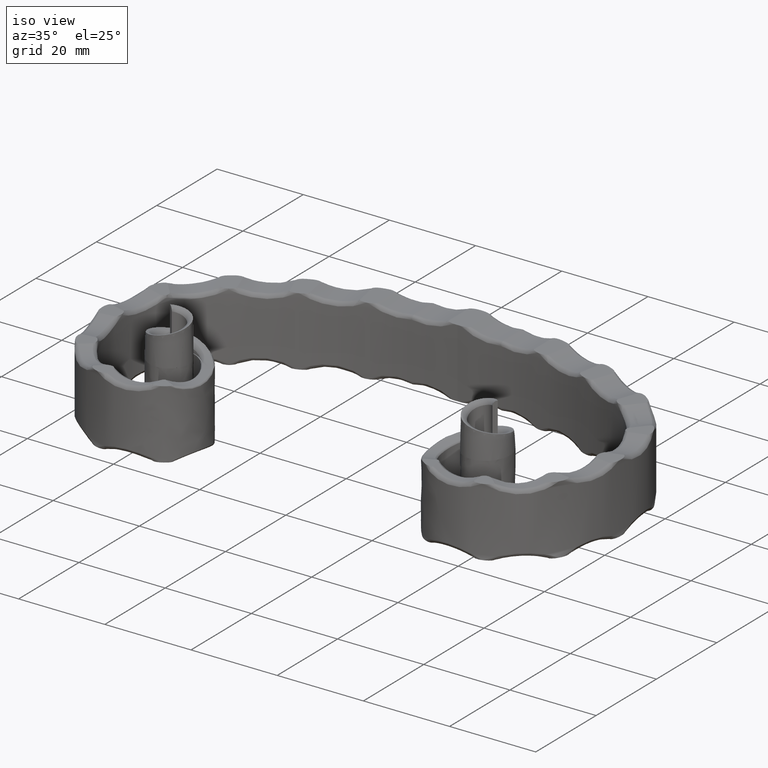
[diagram: clean part render]
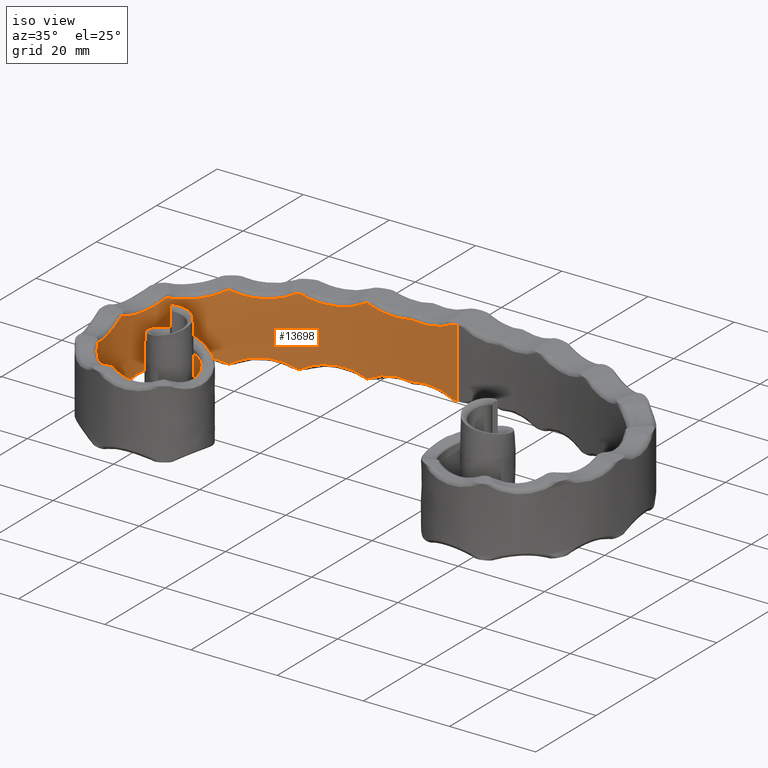
[diagram: same view with one face highlighted and labeled with its STEP entity id]
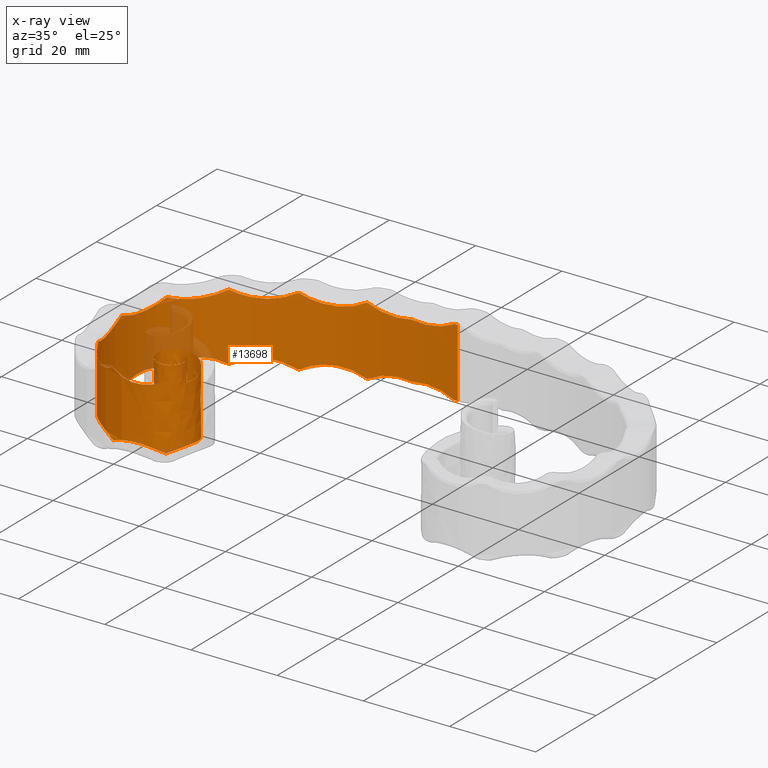
[diagram: x-ray of the same camera — body ghosted, the highlighted face saturated]
A machine part, iso view. The second image highlights one B-rep face of the part: STEP entity #13698.
The next image is the same camera in x-ray: the body ghosted, the highlighted face saturated — about 7% of this face is hidden behind the body in this view.
In plain terms, the highlighted face is a freeform B-spline surface patch.
Its self-contained STEP definition (entity closure, byte-faithful):
#9 = CARTESIAN_POINT ( 'NONE',  ( -29.28018615119203005, 8.092380529825502933, 6.707270226748133446 ) ) ;
#25 = CARTESIAN_POINT ( 'NONE',  ( -48.79783091798830696, 7.681703334988193355, -6.199163027465765197 ) ) ;
#79 = CARTESIAN_POINT ( 'NONE',  ( -32.00877875978845566, 16.71894252210646314, 7.980018812329991995 ) ) ;
#178 = EDGE_CURVE ( 'NONE', #10929, #8134, #7416, .T. ) ;
#205 = CARTESIAN_POINT ( 'NONE',  ( -31.09330677123812947, 16.01155050236125277, -7.847197938722886512 ) ) ;
#253 = CARTESIAN_POINT ( 'NONE',  ( -28.75997195570540654, 10.94143704164568476, -6.753531650913442874 ) ) ;
#344 = ORIENTED_EDGE ( 'NONE', *, *, #17340, .T. ) ;
#377 = CARTESIAN_POINT ( 'NONE',  ( -32.00877875978845566, 16.71894252210646314, -7.980018812329991995 ) ) ;
#418 = CARTESIAN_POINT ( 'NONE',  ( -42.36044258222581504, 3.993198286881246784, -8.000000000000001776 ) ) ;
#419 = CARTESIAN_POINT ( 'NONE',  ( -48.93664484419453942, 42.28738908764136539, 6.248760783448481959 ) ) ;
#446 = CARTESIAN_POINT ( 'NONE',  ( -37.62884700156263307, 10.68042351329262374, 8.000000000000001776 ) ) ;
#467 = CARTESIAN_POINT ( 'NONE',  ( -32.25856944422790207, 16.87443409470638400, -8.000000000000000000 ) ) ;
#479 = CARTESIAN_POINT ( 'NONE',  ( -39.20040579822470761, 12.25418721150844270, -8.000000000000000000 ) ) ;
#481 = CARTESIAN_POINT ( 'NONE',  ( -48.17705154276644208, 43.01399966918614126, 6.394818141454783778 ) ) ;
#491 = CARTESIAN_POINT ( 'NONE',  ( -31.90811552256721129, 4.965811417073677347, -7.412908476268136759 ) ) ;
#510 = CARTESIAN_POINT ( 'NONE',  ( -39.34910798959906231, 15.80723491737672326, 8.000000000000000000 ) ) ;
#537 = CARTESIAN_POINT ( 'NONE',  ( -39.34910798959906231, 15.80723491737672326, -8.000000000000000000 ) ) ;
#552 = CARTESIAN_POINT ( 'NONE',  ( -32.87161460985534234, 51.43596590902024701, 8.000000000000000000 ) ) ;
#557 = EDGE_CURVE ( 'NONE', #1211, #1038, #4549, .T. ) ;
#562 = EDGE_CURVE ( 'NONE', #12275, #1554, #1821, .T. ) ;
#592 = CARTESIAN_POINT ( 'NONE',  ( -39.66832573627871028, 13.65706170450698842, -8.000000000000003553 ) ) ;
#619 = CARTESIAN_POINT ( 'NONE',  ( -18.05240419499855165, 55.68315335671861277, -7.104250020576934332 ) ) ;
#627 = CARTESIAN_POINT ( 'NONE',  ( -39.69701760489463283, 14.38961435650811715, 7.999999999999996447 ) ) ;
#648 = CARTESIAN_POINT ( 'NONE',  ( -55.10049815774038251, 24.81239110124672465, -7.569075268691737080 ) ) ;
#657 = CARTESIAN_POINT ( 'NONE',  ( -31.39058294678240202, 5.213112181310579629, -7.999999999999998224 ) ) ;
#670 = CARTESIAN_POINT ( 'NONE',  ( -33.21281460044610867, 4.319879042359796806, -6.867381968733904607 ) ) ;
#671 = CARTESIAN_POINT ( 'NONE',  ( -33.12092747893230893, 12.77025911770156341, -8.000000000000001776 ) ) ;
#688 = CARTESIAN_POINT ( 'NONE',  ( -32.71929318366549921, 17.15172753826113805, 8.000000000000000000 ) ) ;
#711 = CARTESIAN_POINT ( 'NONE',  ( -54.56505319390414854, 31.47751351489403504, -6.205730327525356138 ) ) ;
#719 = CARTESIAN_POINT ( 'NONE',  ( -48.95833856731366041, 7.572774381832529933, 8.000000000000003553 ) ) ;
#730 = CARTESIAN_POINT ( 'NONE',  ( -39.66832573627871028, 13.65706170450698842, -8.000000000000003553 ) ) ;
#750 = CARTESIAN_POINT ( 'NONE',  ( -35.55088652406919891, 10.39255612426504705, 7.999999999999998224 ) ) ;
#789 = CARTESIAN_POINT ( 'NONE',  ( -35.30641824463872780, 15.95577192689821189, -7.999999999999998224 ) ) ;
#801 = EDGE_CURVE ( 'NONE', #4417, #14457, #7179, .T. ) ;
#804 = CARTESIAN_POINT ( 'NONE',  ( -13.65969513792048495, 56.29015550479422814, -6.183628224404583484 ) ) ;
#832 = CARTESIAN_POINT ( 'NONE',  ( -55.08640431460433717, 26.29317154579525706, -6.964473817984935700 ) ) ;
#840 = CARTESIAN_POINT ( 'NONE',  ( -33.12092747893230893, 12.77025911770156341, 8.000000000000001776 ) ) ;
#872 = ORIENTED_EDGE ( 'NONE', *, *, #4882, .T. ) ;
#896 = CARTESIAN_POINT ( 'NONE',  ( -37.05660421343006306, 15.10980932964934631, 8.000000000000000000 ) ) ;
#910 = CARTESIAN_POINT ( 'NONE',  ( -10.37999383217016991, 56.57769100135259777, -6.491028399571271201 ) ) ;
#928 = CARTESIAN_POINT ( 'NONE',  ( -53.00877394909263529, 36.31517902554995914, -7.550572918696514257 ) ) ;
#952 = CARTESIAN_POINT ( 'NONE',  ( -38.23653495595501539, 11.09257442751474798, 7.999999999999998224 ) ) ;
#981 = CARTESIAN_POINT ( 'NONE',  ( -33.94494347866242379, 15.52457999889023732, 8.000000000000001776 ) ) ;
#984 = CARTESIAN_POINT ( 'NONE',  ( -36.59330754021412702, 15.52456341563321374, 8.000000000000000000 ) ) ;
#1014 = CARTESIAN_POINT ( 'NONE',  ( -32.02783899132303702, 16.82008689685849134, 7.999999999999998224 ) ) ;
#1038 = VERTEX_POINT ( 'NONE', #10944 ) ;
#1063 = CARTESIAN_POINT ( 'NONE',  ( -16.10853626269990002, 55.98869904219387195, 6.496472178983869306 ) ) ;
#1100 = CARTESIAN_POINT ( 'NONE',  ( -54.03355153932269417, 17.59016236901853247, 6.199331892820011625 ) ) ;
#1128 = CARTESIAN_POINT ( 'NONE',  ( -39.70854343512542783, 48.41633363533066614, -6.193684375893526273 ) ) ;
#1165 = CARTESIAN_POINT ( 'NONE',  ( -49.30218125769756909, 41.90812441290224655, -6.208833416339536448 ) ) ;
#1188 = CARTESIAN_POINT ( 'NONE',  ( -41.24578989864158274, 47.62750983806428451, -6.353678726321732029 ) ) ;
#1211 = VERTEX_POINT ( 'NONE', #3625 ) ;
#1212 = CARTESIAN_POINT ( 'NONE',  ( -54.87398497263625075, 29.37300169829406471, 6.270235646891430648 ) ) ;
#1215 = CARTESIAN_POINT ( 'NONE',  ( -45.36816017803524659, 5.292821337000798820, -6.703523072784410175 ) ) ;
#1224 = CARTESIAN_POINT ( 'NONE',  ( -43.99372424243702540, 4.668769918376979078, 7.195427606819862376 ) ) ;
#1226 = CARTESIAN_POINT ( 'NONE',  ( -50.00220361444742423, 41.11541814281594753, -6.193788828479394049 ) ) ;
#1249 = EDGE_CURVE ( 'NONE', #2854, #17430, #4906, .T. ) ;
#1280 = CARTESIAN_POINT ( 'NONE',  ( -52.52884957679156486, 13.03260394234595942, 7.273098895362469563 ) ) ;
#1282 = CARTESIAN_POINT ( 'NONE',  ( -51.90316409651974539, 11.70647982839499157, 7.502560334996096536 ) ) ;
#1321 = CARTESIAN_POINT ( 'NONE',  ( -31.65056103154639189, 16.46756431266197040, 7.938769803205436126 ) ) ;
#1323 = CARTESIAN_POINT ( 'NONE',  ( -54.13931177384130677, 33.27484830865298449, 6.442700785353416393 ) ) ;
#1325 = CARTESIAN_POINT ( 'NONE',  ( -51.90316409651974539, 11.70647982839499157, -7.502560334996096536 ) ) ;
#1377 = CARTESIAN_POINT ( 'NONE',  ( -54.33933691524043752, 32.50930076275095360, 6.311010248471671247 ) ) ;
#1394 = CARTESIAN_POINT ( 'NONE',  ( -30.85695348029329210, 52.20467866243792088, -7.001063459712051795 ) ) ;
#1439 = VERTEX_POINT ( 'NONE', #12245 ) ;
#1506 = CARTESIAN_POINT ( 'NONE',  ( -29.17479586910192069, 8.361521319392585028, -6.681663840661498988 ) ) ;
#1554 = VERTEX_POINT ( 'NONE', #9388 ) ;
#1579 = FACE_OUTER_BOUND ( 'NONE', #8358, .T. ) ;
#1660 = CARTESIAN_POINT ( 'NONE',  ( -0.08908066043442441906, 57.00005378626904928, 8.000000000000000000 ) ) ;
#1669 = CARTESIAN_POINT ( 'NONE',  ( -6.045561740059274491, 56.84763378240568699, -7.999999999999998224 ) ) ;
#1773 = CARTESIAN_POINT ( 'NONE',  ( -32.87161460985534234, 51.43596590902024701, -8.000000000000000000 ) ) ;
#1821 = B_SPLINE_CURVE_WITH_KNOTS ( 'NONE', 3,
 ( #552, #10125, #16869, #12607 ),
 .UNSPECIFIED., .F., .F.,
 ( 4, 4 ),
 ( 0.2101765666532548760, 0.2120935803286293220 ),
 .UNSPECIFIED. ) ;
#1847 = CARTESIAN_POINT ( 'NONE',  ( -34.91065796550991962, 17.88484974976997322, -7.999999999999996447 ) ) ;
#1849 = CARTESIAN_POINT ( 'NONE',  ( -52.58086363603422342, 37.20209937356322172, 7.135563131962348926 ) ) ;
#1852 = VERTEX_POINT ( 'NONE', #5167 ) ;
#1908 = CARTESIAN_POINT ( 'NONE',  ( -52.48952658971480645, 37.77284489274369150, 8.000000000000001776 ) ) ;
#1914 = EDGE_CURVE ( 'NONE', #8226, #14899, #3421, .T. ) ;
#1968 = CARTESIAN_POINT ( 'NONE',  ( -34.23350454575283663, 11.02182457681279892, -7.999999999999998224 ) ) ;
#1979 = CARTESIAN_POINT ( 'NONE',  ( -37.69922724987220874, 3.556664670489440905, -6.194875896133955173 ) ) ;
#1981 = CARTESIAN_POINT ( 'NONE',  ( -36.70445704753899463, 15.47112916287694162, -7.999999999999998224 ) ) ;
#2000 = CARTESIAN_POINT ( 'NONE',  ( -39.20040579822470761, 12.25418721150844270, 8.000000000000000000 ) ) ;
#2026 = B_SPLINE_CURVE_WITH_KNOTS ( 'NONE', 3,
 ( #5142, #11863, #13162, #3774, #17244, #3715, #13219, #9142, #6446, #7777, #5082, #14592 ),
 .UNSPECIFIED., .F., .F.,
 ( 4, 2, 2, 2, 2, 4 ),
 ( -5.999999999974417745E-08, 0.002500448467626788154, 0.005000956935253575951, 0.006251211169066970934, 0.007501465402880364182, 0.01000197387050715675 ),
 .UNSPECIFIED. ) ;
#2033 = CARTESIAN_POINT ( 'NONE',  ( -39.69701760489463283, 14.38961435650811715, -7.999999999999996447 ) ) ;
#2037 = CARTESIAN_POINT ( 'NONE',  ( -31.51482625824523254, 5.239897612660243453, 7.610409624499126835 ) ) ;
#2044 = CARTESIAN_POINT ( 'NONE',  ( -39.75737666124810232, 3.626709459139665803, -6.425117888291124402 ) ) ;
#2045 = CARTESIAN_POINT ( 'NONE',  ( -32.25856944422790207, 16.87443409470638400, -8.000000000000000000 ) ) ;
#2053 = CARTESIAN_POINT ( 'NONE',  ( -33.15981840143795978, 51.32175379737763876, -8.000000000000000000 ) ) ;
#2064 = CARTESIAN_POINT ( 'NONE',  ( -37.79397242525386957, 17.50201094131653790, 7.999999999999998224 ) ) ;
#2086 = ORIENTED_EDGE ( 'NONE', *, *, #9975, .T. ) ;
#2097 = CARTESIAN_POINT ( 'NONE',  ( -33.56136608717459069, 15.18442039513396402, -7.999999999999998224 ) ) ;
#2105 = CARTESIAN_POINT ( 'NONE',  ( -29.26136042439351925, 52.77223103760033496, 6.512879728509075150 ) ) ;
#2109 = CARTESIAN_POINT ( 'NONE',  ( -38.23653495595501539, 11.09257442751474798, -7.999999999999998224 ) ) ;
#2126 = CARTESIAN_POINT ( 'NONE',  ( -33.35725232938546725, 12.12599675229050611, 7.999999999999994671 ) ) ;
#2135 = VERTEX_POINT ( 'NONE', #4730 ) ;
#2153 = CARTESIAN_POINT ( 'NONE',  ( -39.34910798959906231, 15.80723491737672326, 8.000000000000000000 ) ) ;
#2156 = CARTESIAN_POINT ( 'NONE',  ( -37.12965652769860725, 49.64358266262031094, 6.373485249237956118 ) ) ;
#2185 = CARTESIAN_POINT ( 'NONE',  ( -33.56136608717459069, 15.18442039513396402, 7.999999999999998224 ) ) ;
#2271 = CARTESIAN_POINT ( 'NONE',  ( -39.70854343512542783, 48.41633363533066614, 6.193684375893526273 ) ) ;
#2305 = CARTESIAN_POINT ( 'NONE',  ( -31.51482625824523254, 5.239897612660243453, 7.610409624499126835 ) ) ;
#2307 = CARTESIAN_POINT ( 'NONE',  ( -47.78054799798378127, 43.36344505066605137, -6.502157566934410049 ) ) ;
#2332 = CARTESIAN_POINT ( 'NONE',  ( -34.82753805589601370, 15.90804948105585481, 8.000000000000000000 ) ) ;
#2382 = CARTESIAN_POINT ( 'NONE',  ( -52.32667298499046638, 12.57115551157461830, -7.498080902609980392 ) ) ;
#2389 = CARTESIAN_POINT ( 'NONE',  ( -36.27167455857600942, 10.32670764456760004, 8.000000000000001776 ) ) ;
#2460 = B_SPLINE_CURVE_WITH_KNOTS ( 'NONE', 3,
 ( #14524, #1325, #17651, #9371, #17532, #10845, #10895, #14756, #25, #8178, #14933, #6738, #6623, #1215, #8005, #5429, #16381, #6860 ),
 .UNSPECIFIED., .F., .F.,
 ( 4, 2, 2, 2, 2, 2, 2, 2, 4 ),
 ( 1.736890526760486189E-17, 0.001599141686114546358, 0.003198283372229075369, 0.004797425058343604380, 0.006396566744458133391, 0.007995708430572661535, 0.009594850116687191413, 0.01119399180280172129, 0.01279313348891624944 ),
 .UNSPECIFIED. ) ;
#2467 = CARTESIAN_POINT ( 'NONE',  ( -36.98076649216176293, 10.42395965860306184, -7.999999999999996447 ) ) ;
#2478 = CARTESIAN_POINT ( 'NONE',  ( -45.36816017803524659, 5.292821337000798820, 6.703523072784410175 ) ) ;
#2527 = CARTESIAN_POINT ( 'NONE',  ( -29.28396748829007024, 13.46593803670526057, 7.215690442288194895 ) ) ;
#2541 = CARTESIAN_POINT ( 'NONE',  ( -50.33868048703165243, 40.70036844896821293, -6.218844986939814135 ) ) ;
#2590 = CARTESIAN_POINT ( 'NONE',  ( -54.85791896117337529, 21.54683194361570386, 6.673507894031899035 ) ) ;
#2592 = CARTESIAN_POINT ( 'NONE',  ( -51.67172297504234280, 11.27973334794345206, 7.278718253882614952 ) ) ;
#2600 = CARTESIAN_POINT ( 'NONE',  ( -53.00877394909263529, 36.31517902554995914, 7.550572918696514257 ) ) ;
#2615 = CARTESIAN_POINT ( 'NONE',  ( -32.25856944422790207, 16.87443409470638400, 8.000000000000000000 ) ) ;
#2618 = ORIENTED_EDGE ( 'NONE', *, *, #4645, .F. ) ;
#2644 = ORIENTED_EDGE ( 'NONE', *, *, #562, .T. ) ;
#2654 = CARTESIAN_POINT ( 'NONE',  ( -32.25959026191920032, 51.67489932107813644, -7.651503056742639863 ) ) ;
#2680 = CARTESIAN_POINT ( 'NONE',  ( -41.25612824647928534, 3.828803657836681307, 6.787714029291445961 ) ) ;
#2785 = CARTESIAN_POINT ( 'NONE',  ( -28.75808403725590168, 10.64762044667791230, 6.720684517227785371 ) ) ;
#2787 = ORIENTED_EDGE ( 'NONE', *, *, #1249, .T. ) ;
#2788 = ORIENTED_EDGE ( 'NONE', *, *, #16364, .F. ) ;
#2844 = EDGE_CURVE ( 'NONE', #11099, #9346, #6636, .T. ) ;
#2854 = VERTEX_POINT ( 'NONE', #11844 ) ;
#2879 = CARTESIAN_POINT ( 'NONE',  ( -37.05660421343006306, 15.10980932964934631, -8.000000000000000000 ) ) ;
#3021 = CARTESIAN_POINT ( 'NONE',  ( -55.13862872979680674, 27.50287058756813963, -7.999999999999994671 ) ) ;
#3050 = VERTEX_POINT ( 'NONE', #11403 ) ;
#3077 = CARTESIAN_POINT ( 'NONE',  ( -10.37999383217016991, 56.57769100135259777, 6.491028399571271201 ) ) ;
#3111 = CARTESIAN_POINT ( 'NONE',  ( -0.3204210792814157771, 56.99413403145693735, 8.000000000000000000 ) ) ;
#3144 = B_SPLINE_CURVE_WITH_KNOTS ( 'NONE', 3,
 ( #6818, #13744, #15122, #4295, #5657, #13802, #8248, #7044, #1506, #13585, #12314, #11023, #5608, #16565, #253, #9775, #4126, #6995, #13637, #5500, #15007, #16509, #8356, #205, #9728, #5773, #13916, #377, #4413, #15301 ),
 .UNSPECIFIED., .F., .F.,
 ( 4, 2, 2, 2, 2, 2, 2, 2, 2, 2, 2, 2, 2, 2, 4 ),
 ( 1.040834085586084257E-17, 0.001740322862439829064, 0.002610484293659741644, 0.003480645724879654658, 0.004350807156099567238, 0.005220968587319479819, 0.006091130018539392399, 0.006961291449759304979, 0.008701614312199134477, 0.01044193717463896658, 0.01131209860585888176, 0.01218226003707879694, 0.01305242146829872080, 0.01348750218390867318, 0.01392258289951862731 ),
 .UNSPECIFIED. ) ;
#3160 = CARTESIAN_POINT ( 'NONE',  ( -32.38349995982278529, 51.62695185615822879, 7.718246896867611895 ) ) ;
#3179 = B_SPLINE_CURVE_WITH_KNOTS ( 'NONE', 3,
 ( #8331, #11108, #12644, #5805, #4445, #7194, #12576, #11290, #8560, #11231, #9868, #3077 ),
 .UNSPECIFIED., .F., .F.,
 ( 4, 2, 2, 2, 2, 4 ),
 ( -5.999999999974417745E-08, 0.002500448467626788154, 0.005000956935253575951, 0.006251211169066970934, 0.007501465402880364182, 0.01000197387050715675 ),
 .UNSPECIFIED. ) ;
#3180 = EDGE_CURVE ( 'NONE', #2135, #4417, #7397, .T. ) ;
#3204 = CARTESIAN_POINT ( 'NONE',  ( -55.13862872979680674, 27.50287058756813963, 8.000000000000001776 ) ) ;
#3214 = CARTESIAN_POINT ( 'NONE',  ( -31.62968316425172333, 51.91573778110006288, 7.336517971921333370 ) ) ;
#3231 = CARTESIAN_POINT ( 'NONE',  ( -38.22009671292569521, 3.548057936002601220, 6.220108489012189601 ) ) ;
#3263 = CARTESIAN_POINT ( 'NONE',  ( -37.62884700156263307, 10.68042351329262374, -8.000000000000001776 ) ) ;
#3321 = CARTESIAN_POINT ( 'NONE',  ( -33.24108485082397380, 14.70733998012455324, -8.000000000000003553 ) ) ;
#3385 = CARTESIAN_POINT ( 'NONE',  ( -38.77688029305250694, 11.63386227179553067, -8.000000000000000000 ) ) ;
#3393 = CARTESIAN_POINT ( 'NONE',  ( -20.40888773008198243, 55.23537886161881261, 7.697178206031616732 ) ) ;
#3395 = CARTESIAN_POINT ( 'NONE',  ( -34.82753805589601370, 15.90804948105585481, -8.000000000000000000 ) ) ;
#3421 = B_SPLINE_CURVE_WITH_KNOTS ( 'NONE', 3,
 ( #12893, #17512, #5226, #9348, #7857, #16070, #3740, #14733, #14617, #15944, #17450, #1128, #17389, #1188, #16130, #17325, #7975, #13426, #16187, #8042 ),
 .UNSPECIFIED., .F., .F.,
 ( 4, 2, 2, 2, 2, 2, 2, 2, 2, 4 ),
 ( -6.000000000961549942E-08, 0.0004316637708852878318, 0.0008633875417705852819, 0.001726835083541178881, 0.003453730167082383860, 0.006907520334164802059, 0.008634415417706020265, 0.01036131050124723847, 0.01208820558478845841, 0.01381510066832967662 ),
 .UNSPECIFIED. ) ;
#3446 = CARTESIAN_POINT ( 'NONE',  ( -38.42882680212537849, 17.05135936352359138, -8.000000000000003553 ) ) ;
#3478 = CARTESIAN_POINT ( 'NONE',  ( -36.22657963764193312, 15.74241940397096862, 8.000000000000001776 ) ) ;
#3498 = CARTESIAN_POINT ( 'NONE',  ( -55.01015279704846250, 27.81354943796463886, -6.531948650361185216 ) ) ;
#3506 = CARTESIAN_POINT ( 'NONE',  ( -38.95765234557162415, 16.47334611675310612, 8.000000000000000000 ) ) ;
#3511 = CARTESIAN_POINT ( 'NONE',  ( -38.16025278262599585, 49.17092857613931756, 6.216098892743768367 ) ) ;
#3534 = CARTESIAN_POINT ( 'NONE',  ( -12.01340370766983057, 56.45070897305539859, -6.224875722594332750 ) ) ;
#3573 = CARTESIAN_POINT ( 'NONE',  ( -39.50294519289270312, 12.94139072795001510, 8.000000000000000000 ) ) ;
#3605 = CARTESIAN_POINT ( 'NONE',  ( -36.79403234156400515, 15.37922062737437834, 8.000000000000000000 ) ) ;
#3606 = CARTESIAN_POINT ( 'NONE',  ( -45.78793507507698735, 44.91432600451214086, -7.309872916209078753 ) ) ;
#3622 = CARTESIAN_POINT ( 'NONE',  ( -55.07215038195652568, 23.85186374529194353, -7.550998952995045421 ) ) ;
#3625 = CARTESIAN_POINT ( 'NONE',  ( -19.90224518875608695, 55.33738705203669639, -7.993598432528282061 ) ) ;
#3715 = CARTESIAN_POINT ( 'NONE',  ( -5.850865920842181822, 56.82524022987794154, -6.303300483587420011 ) ) ;
#3736 = CARTESIAN_POINT ( 'NONE',  ( -11.19442615664537755, 56.51891309637498040, 6.319829921565598418 ) ) ;
#3740 = CARTESIAN_POINT ( 'NONE',  ( -34.35265795412442458, 50.83768439280612483, -7.347631120032846574 ) ) ;
#3742 = CARTESIAN_POINT ( 'NONE',  ( -33.94494347866242379, 15.52457999889023732, 8.000000000000001776 ) ) ;
#3744 = ORIENTED_EDGE ( 'NONE', *, *, #12571, .F. ) ;
#3771 = CARTESIAN_POINT ( 'NONE',  ( -51.15206169971348515, 10.43428734654731116, 6.889820812174779263 ) ) ;
#3774 = CARTESIAN_POINT ( 'NONE',  ( -3.829740487113461711, 56.89759514795997575, -6.697410448300380459 ) ) ;
#3846 = CARTESIAN_POINT ( 'NONE',  ( -53.88643096111805164, 17.05665589723809106, -6.232351866164936638 ) ) ;
#3888 = CARTESIAN_POINT ( 'NONE',  ( -49.91107080780096794, 8.816115068942391275, 6.364596398398465915 ) ) ;
#3895 = CARTESIAN_POINT ( 'NONE',  ( -27.60453094481044545, 53.32307464647272610, -6.242318796257454672 ) ) ;
#3947 = CARTESIAN_POINT ( 'NONE',  ( -30.33178682549106497, 52.39556041108361484, -6.814356397393529718 ) ) ;
#4006 = CARTESIAN_POINT ( 'NONE',  ( -52.32667298499046638, 12.57115551157461830, 7.498080902609980392 ) ) ;
#4034 = CARTESIAN_POINT ( 'NONE',  ( -30.13504155220423186, 6.601587371991978870, 7.004542247691988521 ) ) ;
#4068 = CARTESIAN_POINT ( 'NONE',  ( -27.03465748610730657, 53.50334132132798004, -6.201671621207240470 ) ) ;
#4091 = CARTESIAN_POINT ( 'NONE',  ( -29.52286853243399634, 7.571842378881232349, 6.778976973440662412 ) ) ;
#4126 = CARTESIAN_POINT ( 'NONE',  ( -28.92708453365852961, 12.37126233730417546, -6.978272403461671658 ) ) ;
#4147 = CARTESIAN_POINT ( 'NONE',  ( -28.75997195570540654, 10.94143704164568476, 6.753531650913442874 ) ) ;
#4295 = CARTESIAN_POINT ( 'NONE',  ( -30.13504155220423186, 6.601587371991978870, -7.004542247691988521 ) ) ;
#4396 = CARTESIAN_POINT ( 'NONE',  ( -55.13762060036720669, 21.94427858772227680, -8.000000000000003553 ) ) ;
#4413 = CARTESIAN_POINT ( 'NONE',  ( -32.13453874158903290, 16.79978436929124541, -7.991247484268984458 ) ) ;
#4417 = VERTEX_POINT ( 'NONE', #13795 ) ;
#4429 = EDGE_CURVE ( 'NONE', #17430, #12275, #8861, .T. ) ;
#4445 = CARTESIAN_POINT ( 'NONE',  ( -4.627074133294800440, 56.87185164299355478, 6.496583673559783279 ) ) ;
#4512 = CARTESIAN_POINT ( 'NONE',  ( -38.86990180138302264, 3.433018950803901070, -8.000000000000000000 ) ) ;
#4514 = CARTESIAN_POINT ( 'NONE',  ( -49.30218125769756909, 41.90812441290224655, 6.208833416339536448 ) ) ;
#4534 = EDGE_CURVE ( 'NONE', #14457, #6981, #2026, .T. ) ;
#4549 = B_SPLINE_CURVE_WITH_KNOTS ( 'NONE', 3,
 ( #10911, #14833, #16337, #10742, #13523, #5270, #5330, #4068, #3895, #8077, #6754, #3947, #1394, #6573, #13339, #2654, #13584, #6816, #17490, #13402 ),
 .UNSPECIFIED., .F., .F.,
 ( 4, 2, 2, 2, 2, 2, 2, 2, 2, 4 ),
 ( 1.269252464870651153E-05, 0.001785687139339403725, 0.003558681754030100682, 0.007104670983411490691, 0.008877665598102187430, 0.01065066021279287983, 0.01242365482748357397, 0.01331015213482892624, 0.01375340078850160325, 0.01419664944217427505 ),
 .UNSPECIFIED. ) ;
#4574 = CARTESIAN_POINT ( 'NONE',  ( -28.71119130262934505, 10.98156440477300144, -7.999999999999998224 ) ) ;
#4577 = CARTESIAN_POINT ( 'NONE',  ( -53.00877394909263529, 36.31517902554995914, 7.550572918696514257 ) ) ;
#4583 = CARTESIAN_POINT ( 'NONE',  ( -25.33939642399333181, 54.01791052637366874, 6.196810948678547426 ) ) ;
#4604 = CARTESIAN_POINT ( 'NONE',  ( -39.59227957550186972, 15.10768060408133984, 8.000000000000001776 ) ) ;
#4634 = CARTESIAN_POINT ( 'NONE',  ( -36.98076649216176293, 10.42395965860306184, -7.999999999999996447 ) ) ;
#4645 = EDGE_CURVE ( 'NONE', #14899, #14784, #15819, .T. ) ;
#4671 = EDGE_CURVE ( 'NONE', #14784, #6908, #15576, .T. ) ;
#4694 = CARTESIAN_POINT ( 'NONE',  ( -33.12092747893230893, 12.77025911770156341, -8.000000000000001776 ) ) ;
#4697 = CARTESIAN_POINT ( 'NONE',  ( -45.00015201292174538, 45.43025194713680293, 7.819219556421773909 ) ) ;
#4706 = CARTESIAN_POINT ( 'NONE',  ( -33.67958495491095761, 4.170110407700454935, -6.716395619463458644 ) ) ;
#4708 = CARTESIAN_POINT ( 'NONE',  ( -36.27167455857600942, 10.32670764456760004, -8.000000000000001776 ) ) ;
#4730 = CARTESIAN_POINT ( 'NONE',  ( -0.08908066043442441906, 57.00005378626904928, 1.015893009529535113E-19 ) ) ;
#4741 = ORIENTED_EDGE ( 'NONE', *, *, #5458, .F. ) ;
#4753 = CARTESIAN_POINT ( 'NONE',  ( -6.045561740059274491, 56.84763378240568699, 8.000000000000000000 ) ) ;
#4754 = CARTESIAN_POINT ( 'NONE',  ( -33.63133157278504370, 51.13259776429151771, 7.722436518389759641 ) ) ;
#4761 = CARTESIAN_POINT ( 'NONE',  ( -36.16241037122673418, 3.676209922369355176, -6.243558295744647602 ) ) ;
#4762 = CARTESIAN_POINT ( 'NONE',  ( -33.35725232938546725, 12.12599675229050611, -7.999999999999994671 ) ) ;
#4802 = CARTESIAN_POINT ( 'NONE',  ( -54.65722857120957201, 30.95608999132581118, -6.190043606287408906 ) ) ;
#4808 = CARTESIAN_POINT ( 'NONE',  ( -33.02183117748645458, 13.44526017974104803, -8.000000000000000000 ) ) ;
#4810 = CARTESIAN_POINT ( 'NONE',  ( -33.75048028177368309, 51.08430962412614207, 7.656789402035210301 ) ) ;
#4821 = CARTESIAN_POINT ( 'NONE',  ( -34.23350454575283663, 11.02182457681279892, -7.999999999999998224 ) ) ;
#4833 = CARTESIAN_POINT ( 'NONE',  ( -19.18095342966318739, 55.47953065603338274, -7.601292564842835553 ) ) ;
#4840 = CARTESIAN_POINT ( 'NONE',  ( -35.30641824463872780, 15.95577192689821189, 7.999999999999998224 ) ) ;
#4842 = CARTESIAN_POINT ( 'NONE',  ( -39.24796082266427533, 3.583049137120585481, 6.335306095559996464 ) ) ;
#4868 = CARTESIAN_POINT ( 'NONE',  ( -33.02183117748645458, 13.44526017974104803, 8.000000000000000000 ) ) ;
#4882 = EDGE_CURVE ( 'NONE', #3050, #8134, #11705, .T. ) ;
#4893 = CARTESIAN_POINT ( 'NONE',  ( -16.10853626269990002, 55.98869904219387195, -6.496472178983869306 ) ) ;
#4906 = B_SPLINE_CURVE_WITH_KNOTS ( 'NONE', 3,
 ( #14615, #3736, #11937, #13423, #9223, #1063, #10578, #14672, #7910, #9459, #6893, #5401 ),
 .UNSPECIFIED., .F., .F.,
 ( 4, 2, 2, 2, 2, 4 ),
 ( 0.000000000000000000, 0.002479301390739908906, 0.004958602781479817811, 0.007437904172219731054, 0.008677554867589691578, 0.009917205562959652970 ),
 .UNSPECIFIED. ) ;
#4929 = CARTESIAN_POINT ( 'NONE',  ( -28.93796997582719754, 12.58919457973952127, 8.000000000000000000 ) ) ;
#4933 = ORIENTED_EDGE ( 'NONE', *, *, #4671, .F. ) ;
#4962 = EDGE_CURVE ( 'NONE', #6908, #15622, #17075, .T. ) ;
#4980 = CARTESIAN_POINT ( 'NONE',  ( -53.58022942530956101, 16.00899649406393976, -6.363615828197390023 ) ) ;
#5020 = CARTESIAN_POINT ( 'NONE',  ( -31.70758161190356006, 5.097376804051902965, 7.511110336776562590 ) ) ;
#5023 = CARTESIAN_POINT ( 'NONE',  ( -45.00015201292174538, 45.43025194713680293, -7.819219556421773909 ) ) ;
#5035 = ORIENTED_EDGE ( 'NONE', *, *, #8208, .T. ) ;
#5050 = CARTESIAN_POINT ( 'NONE',  ( -36.93922935566527599, 15.23024154703032451, 8.000000000000000000 ) ) ;
#5055 = ORIENTED_EDGE ( 'NONE', *, *, #4534, .F. ) ;
#5082 = CARTESIAN_POINT ( 'NONE',  ( -9.565316674825968590, 56.63648657601579828, -6.319778456252548970 ) ) ;
#5106 = CARTESIAN_POINT ( 'NONE',  ( -39.20040579822470761, 12.25418721150844270, 8.000000000000000000 ) ) ;
#5142 = CARTESIAN_POINT ( 'NONE',  ( -0.7830944702466455798, 56.98224627935083930, -8.000000000000000000 ) ) ;
#5167 = CARTESIAN_POINT ( 'NONE',  ( -36.59330754021412702, 15.52456341563321374, 8.000000000000000000 ) ) ;
#5226 = CARTESIAN_POINT ( 'NONE',  ( -33.39448261736294654, 51.22803112279866156, -7.858003027534294915 ) ) ;
#5230 = CARTESIAN_POINT ( 'NONE',  ( -45.00015201292174538, 45.43025194713680293, 7.819219556421773909 ) ) ;
#5247 = CARTESIAN_POINT ( 'NONE',  ( -0.3204210792814157771, 56.99413403145693735, -8.000000000000000000 ) ) ;
#5267 = CARTESIAN_POINT ( 'NONE',  ( -51.83596939746464471, 38.53343703541301579, -6.651751868141209556 ) ) ;
#5270 = CARTESIAN_POINT ( 'NONE',  ( -24.21647274438270969, 54.33019607061190470, -6.344282434873425025 ) ) ;
#5314 = CARTESIAN_POINT ( 'NONE',  ( -54.81168038996435854, 29.90481038527792634, 6.221963019220986268 ) ) ;
#5330 = CARTESIAN_POINT ( 'NONE',  ( -25.33939642399333181, 54.01791052637366874, -6.196810948678547426 ) ) ;
#5401 = CARTESIAN_POINT ( 'NONE',  ( -19.90224518875608695, 55.33738705203669639, 7.993598432528282061 ) ) ;
#5410 = CARTESIAN_POINT ( 'NONE',  ( -29.96601253841066637, 6.835094362260765166, 6.937748761730521352 ) ) ;
#5427 = CARTESIAN_POINT ( 'NONE',  ( -53.41031053414394592, 35.44616393327449799, 7.080561708600406234 ) ) ;
#5429 = CARTESIAN_POINT ( 'NONE',  ( -43.99372424243702540, 4.668769918376979078, -7.195427606819862376 ) ) ;
#5458 = EDGE_CURVE ( 'NONE', #9346, #10929, #3144, .T. ) ;
#5465 = CARTESIAN_POINT ( 'NONE',  ( -28.82315843963518986, 9.779069611405480700, 6.657716515828525417 ) ) ;
#5489 = ORIENTED_EDGE ( 'NONE', *, *, #12598, .T. ) ;
#5500 = CARTESIAN_POINT ( 'NONE',  ( -29.97461223332025426, 14.70916536940780439, -7.527452635455332164 ) ) ;
#5532 = VERTEX_POINT ( 'NONE', #2615 ) ;
#5533 = CARTESIAN_POINT ( 'NONE',  ( -31.30854980864106807, 16.20110457663623293, 7.888155018083266690 ) ) ;
#5608 = CARTESIAN_POINT ( 'NONE',  ( -28.78979035765768302, 10.06745241236567168, -6.672942796660318976 ) ) ;
#5657 = CARTESIAN_POINT ( 'NONE',  ( -29.96601253841066637, 6.835094362260765166, -6.937748761730521352 ) ) ;
#5694 = CARTESIAN_POINT ( 'NONE',  ( -43.22048657749677147, 46.79474481833860722, -8.000000000000003553 ) ) ;
#5756 = CARTESIAN_POINT ( 'NONE',  ( -53.76008835267613506, 16.28511889698446780, -8.000000000000000000 ) ) ;
#5773 = CARTESIAN_POINT ( 'NONE',  ( -31.65056103154639189, 16.46756431266197040, -7.938769803205436126 ) ) ;
#5777 = EDGE_CURVE ( 'NONE', #10010, #1852, #14440, .T. ) ;
#5805 = CARTESIAN_POINT ( 'NONE',  ( -3.829740487113461711, 56.89759514795997575, 6.697410448300380459 ) ) ;
#5814 = CARTESIAN_POINT ( 'NONE',  ( -0.08908066043442440518, 57.00005378626904928, -8.000000000000000000 ) ) ;
#5878 = CARTESIAN_POINT ( 'NONE',  ( -50.00220361444742423, 41.11541814281594753, 6.193788828479394049 ) ) ;
#5888 = CARTESIAN_POINT ( 'NONE',  ( -24.21647274438270969, 54.33019607061190470, 6.344282434873425025 ) ) ;
#5930 = CARTESIAN_POINT ( 'NONE',  ( -54.13931177384130677, 33.27484830865298449, -6.442700785353416393 ) ) ;
#5936 = CARTESIAN_POINT ( 'NONE',  ( -33.94494347866242379, 15.52457999889023732, -8.000000000000001776 ) ) ;
#5944 = CARTESIAN_POINT ( 'NONE',  ( -20.92909439397513438, 55.12439983918927311, 7.437164313729283549 ) ) ;
#5995 = CARTESIAN_POINT ( 'NONE',  ( -42.36044258222581504, 3.993198286881246784, 8.000000000000001776 ) ) ;
#6000 = CARTESIAN_POINT ( 'NONE',  ( -55.08649289382319836, 24.33784102640471048, 7.815096484799062715 ) ) ;
#6007 = CARTESIAN_POINT ( 'NONE',  ( -39.24796082266427533, 3.583049137120585481, -6.335306095559996464 ) ) ;
#6008 = CARTESIAN_POINT ( 'NONE',  ( -35.55088652406919891, 10.39255612426504705, -7.999999999999998224 ) ) ;
#6028 = CARTESIAN_POINT ( 'NONE',  ( -37.05660421343006306, 15.10980932964934631, 8.000000000000000000 ) ) ;
#6056 = CARTESIAN_POINT ( 'NONE',  ( -43.22048657749677147, 46.79474481833860722, 8.000000000000000000 ) ) ;
#6064 = CARTESIAN_POINT ( 'NONE',  ( -32.62916881784133238, 51.53128183637287663, 7.855955089098157096 ) ) ;
#6068 = CARTESIAN_POINT ( 'NONE',  ( -39.59227957550186972, 15.10768060408133984, -8.000000000000001776 ) ) ;
#6087 = DIRECTION ( 'NONE',  ( -0.000000000000000000, -0.000000000000000000, 1.000000000000000000 ) ) ;
#6120 = CARTESIAN_POINT ( 'NONE',  ( -53.76008835267613506, 16.28511889698446780, 8.000000000000003553 ) ) ;
#6128 = EDGE_CURVE ( 'NONE', #15906, #5532, #12050, .T. ) ;
#6131 = CARTESIAN_POINT ( 'NONE',  ( -31.70758161190356006, 5.097376804051902965, -7.511110336776562590 ) ) ;
#6132 = CARTESIAN_POINT ( 'NONE',  ( -39.34910798959906231, 15.80723491737672326, -8.000000000000000000 ) ) ;
#6177 = CARTESIAN_POINT ( 'NONE',  ( -37.05660421343006306, 15.10980932964934631, -8.000000000000000000 ) ) ;
#6180 = CARTESIAN_POINT ( 'NONE',  ( -33.15981840143795978, 51.32175379737763876, 8.000000000000000000 ) ) ;
#6190 = CARTESIAN_POINT ( 'NONE',  ( -33.94494347866242379, 15.52457999889023732, -8.000000000000001776 ) ) ;
#6237 = CARTESIAN_POINT ( 'NONE',  ( -36.26424687908592404, 15.72917085306321461, 8.000000000000001776 ) ) ;
#6239 = CARTESIAN_POINT ( 'NONE',  ( -40.22865166182283048, 48.15523212478542092, 6.222912731129218500 ) ) ;
#6271 = CARTESIAN_POINT ( 'NONE',  ( -32.32612587826952932, 4.724360093668513727, 7.221863683327017114 ) ) ;
#6291 = DIRECTION ( 'NONE',  ( 1.694043115214179254E-18, 6.212013110395918427E-21, -1.000000000000000000 ) ) ;
#6298 = CARTESIAN_POINT ( 'NONE',  ( -33.05837237034327103, 14.12907286212207048, 7.999999999999998224 ) ) ;
#6300 = CARTESIAN_POINT ( 'NONE',  ( -35.08886313319493411, 50.53053261209861802, 7.017172491354071617 ) ) ;
#6335 = CARTESIAN_POINT ( 'NONE',  ( -31.90811552256721129, 4.965811417073677347, 7.412908476268136759 ) ) ;
#6351 = CARTESIAN_POINT ( 'NONE',  ( -54.95436154719478594, 22.33216968019422666, -6.921391695037773850 ) ) ;
#6360 = CARTESIAN_POINT ( 'NONE',  ( -36.70445704753899463, 15.47112916287694162, 7.999999999999998224 ) ) ;
#6361 = CARTESIAN_POINT ( 'NONE',  ( -33.27584584422416469, 51.27554928121822542, 7.928499890279697482 ) ) ;
#6446 = CARTESIAN_POINT ( 'NONE',  ( -7.508443195043349228, 56.75138474790301757, -6.193948176790773807 ) ) ;
#6502 = CARTESIAN_POINT ( 'NONE',  ( -49.18296383220958035, 8.047626527219064130, 6.231243307030123191 ) ) ;
#6505 = ORIENTED_EDGE ( 'NONE', *, *, #15331, .F. ) ;
#6507 = ORIENTED_EDGE ( 'NONE', *, *, #15943, .T. ) ;
#6525 = CARTESIAN_POINT ( 'NONE',  ( -55.08649289382319836, 24.33784102640471048, -7.815096484799062715 ) ) ;
#6556 = CARTESIAN_POINT ( 'NONE',  ( -55.06722544563884725, 26.79559195571502528, 6.801300255037452835 ) ) ;
#6569 = CARTESIAN_POINT ( 'NONE',  ( -47.99558427499298574, 6.993720855259511815, 6.200870278348268982 ) ) ;
#6573 = CARTESIAN_POINT ( 'NONE',  ( -31.62968316425172333, 51.91573778110006288, -7.336517971921333370 ) ) ;
#6623 = CARTESIAN_POINT ( 'NONE',  ( -46.26419191294927913, 5.790771503380484297, -6.460303741270263522 ) ) ;
#6635 = CARTESIAN_POINT ( 'NONE',  ( -52.58086363603422342, 37.20209937356322172, -7.135563131962348926 ) ) ;
#6636 = B_SPLINE_CURVE_WITH_KNOTS ( 'NONE', 3,
 ( #12906, #11482, #14147, #2044, #6007, #10121, #1979, #10186, #4761, #14086, #12847, #4706, #670, #15656, #16921, #491, #6131, #15534 ),
 .UNSPECIFIED., .F., .F.,
 ( 4, 2, 2, 2, 2, 2, 2, 2, 4 ),
 ( 0.0008340971564905603174, 0.003946034087494431145, 0.005502002552996366341, 0.007057971018498301538, 0.008613939484000236735, 0.01016990794950217367, 0.01172587641500410886, 0.01250386064775508600, 0.01328184488050606314 ),
 .UNSPECIFIED. ) ;
#6735 = CARTESIAN_POINT ( 'NONE',  ( -55.08640431460433717, 26.29317154579525706, 6.964473817984935700 ) ) ;
#6738 = CARTESIAN_POINT ( 'NONE',  ( -46.70599668538108062, 6.065049414156288954, -6.365026531592835823 ) ) ;
#6754 = CARTESIAN_POINT ( 'NONE',  ( -29.26136042439351925, 52.77223103760033496, -6.512879728509075150 ) ) ;
#6771 = CARTESIAN_POINT ( 'NONE',  ( -45.00015201292174538, 45.43025194713680293, -7.819219556421773909 ) ) ;
#6781 = CARTESIAN_POINT ( 'NONE',  ( -29.66009513987373225, 7.320413466584523299, 6.825070375090568575 ) ) ;
#6798 = CARTESIAN_POINT ( 'NONE',  ( -54.56505319390414854, 31.47751351489403504, 6.205730327525356138 ) ) ;
#6816 = CARTESIAN_POINT ( 'NONE',  ( -32.62916881784133238, 51.53128183637287663, -7.855955089098157096 ) ) ;
#6818 = CARTESIAN_POINT ( 'NONE',  ( -31.51482625824523254, 5.239897612660243453, -7.610409624499126835 ) ) ;
#6841 = CARTESIAN_POINT ( 'NONE',  ( -28.78979035765768302, 10.06745241236567168, 6.672942796660318976 ) ) ;
#6860 = CARTESIAN_POINT ( 'NONE',  ( -43.06589075425424795, 4.340499866023121101, -7.606219462519310248 ) ) ;
#6893 = CARTESIAN_POINT ( 'NONE',  ( -19.54587034592390538, 55.40914011235536663, 7.789193982996097887 ) ) ;
#6900 = CARTESIAN_POINT ( 'NONE',  ( -28.92708453365852961, 12.37126233730417546, 6.978272403461671658 ) ) ;
#6908 = VERTEX_POINT ( 'NONE', #11614 ) ;
#6981 = VERTEX_POINT ( 'NONE', #910 ) ;
#6983 = CARTESIAN_POINT ( 'NONE',  ( -39.75737666124810232, 3.626709459139665803, 6.425117888291124402 ) ) ;
#6995 = CARTESIAN_POINT ( 'NONE',  ( -29.28396748829007024, 13.46593803670526057, -7.215690442288194895 ) ) ;
#7044 = CARTESIAN_POINT ( 'NONE',  ( -29.28018615119203005, 8.092380529825502933, -6.707270226748133446 ) ) ;
#7060 = B_SPLINE_CURVE_WITH_KNOTS ( 'NONE', 3,
 ( #16718, #14800, #2680, #6983, #4842, #3231, #14420, #8648, #8963, #9078, #15429, #10494, #7282, #17301, #6271, #6335, #5020, #2305 ),
 .UNSPECIFIED., .F., .F.,
 ( 4, 2, 2, 2, 2, 2, 2, 2, 4 ),
 ( 0.0008340971564905603174, 0.003946034087494431145, 0.005502002552996366341, 0.007057971018498301538, 0.008613939484000236735, 0.01016990794950217367, 0.01172587641500410886, 0.01250386064775508600, 0.01328184488050606314 ),
 .UNSPECIFIED. ) ;
#7087 = CARTESIAN_POINT ( 'NONE',  ( -52.48952658971480645, 37.77284489274369150, -7.999999999999996447 ) ) ;
#7100 = B_SPLINE_CURVE_WITH_KNOTS ( 'NONE', 3,
 ( #10206, #688, #12926, #15555, #15616, #8655, #2064, #11384, #16939, #510, #4604, #627, #7467, #16761, #2000, #11505, #8840, #446, #9973, #14105, #750, #11744, #15917, #15678, #2126, #11628, #11808, #17179, #14418, #2185, #981, #12984, #14588, #4840, #10263, #3478, #15857, #9076 ),
 .UNSPECIFIED., .F., .F.,
 ( 4, 1, 1, 1, 1, 1, 1, 1, 1, 1, 1, 1, 1, 1, 1, 1, 1, 1, 1, 1, 1, 1, 1, 1, 1, 1, 1, 1, 1, 1, 1, 1, 1, 1, 1, 4 ),
 ( 0.8055974231361461291, 0.8168753163733342149, 0.8254648212622619496, 0.8338777326377696530, 0.8417374725438308003, 0.8476900748719412571, 0.8536739752493338607, 0.8596723398868704180, 0.8657199806911439754, 0.8711016275644573037, 0.8765218075249352481, 0.8819648881070170088, 0.8874158191034282606, 0.8929086252330729057, 0.8984123592610701037, 0.9039583099793584431, 0.9093979284498575621, 0.9147238045027490383, 0.9201009716574970465, 0.9255066814464790736, 0.9309167109032308041, 0.9363858535653976078, 0.9418642572720302697, 0.9467582194043550059, 0.9516941636778122326, 0.9566337969864757707, 0.9615526416564625922, 0.9662532242854789954, 0.9709803087413948486, 0.9745289622775291649, 0.9781300819601848051, 0.9817482887861940233, 0.9853504273271718183, 0.9889700796270624039, 0.9926337205710183964, 0.9954442592201032669 ),
 .UNSPECIFIED. ) ;
#7141 = CARTESIAN_POINT ( 'NONE',  ( -45.62908092635247925, 5.293365211000051751, -7.999999999999998224 ) ) ;
#7179 = B_SPLINE_CURVE_WITH_KNOTS ( 'NONE', 3,
 ( #14691, #5247, #13256, #11791 ),
 .UNSPECIFIED., .F., .F.,
 ( 4, 4 ),
 ( 0.000000000000000000, 0.004350486140915422323 ),
 .UNSPECIFIED. ) ;
#7194 = CARTESIAN_POINT ( 'NONE',  ( -5.850865920842181822, 56.82524022987794154, 6.303300483587420011 ) ) ;
#7207 = CARTESIAN_POINT ( 'NONE',  ( -45.78793507507698735, 44.91432600451214086, 7.309872916209078753 ) ) ;
#7258 = CARTESIAN_POINT ( 'NONE',  ( -0.08908066043442441906, 57.00005378626904928, 8.000000000000000000 ) ) ;
#7261 = CARTESIAN_POINT ( 'NONE',  ( -50.97593248938350996, 39.84807747858760507, 6.332028460460024988 ) ) ;
#7268 = CARTESIAN_POINT ( 'NONE',  ( -27.03465748610730657, 53.50334132132798004, 6.201671621207240470 ) ) ;
#7278 = CARTESIAN_POINT ( 'NONE',  ( -0.5517614981284071352, 56.98821427664481831, 8.000000000000000000 ) ) ;
#7282 = CARTESIAN_POINT ( 'NONE',  ( -33.21281460044610867, 4.319879042359796806, 6.867381968733904607 ) ) ;
#7309 = CARTESIAN_POINT ( 'NONE',  ( -53.76987020871784750, 34.51891276790006913, -6.728845312140550483 ) ) ;
#7318 = CARTESIAN_POINT ( 'NONE',  ( -28.93796997582719754, 12.58919457973952127, -8.000000000000000000 ) ) ;
#7379 = CARTESIAN_POINT ( 'NONE',  ( -35.71000148525192230, 3.665121640498422817, 8.000000000000001776 ) ) ;
#7395 = CARTESIAN_POINT ( 'NONE',  ( -36.26424687908592404, 15.72917085306321461, -8.000000000000001776 ) ) ;
#7397 = LINE ( 'NONE', #11585, #13335 ) ;
#7416 = B_SPLINE_CURVE_WITH_KNOTS ( 'NONE', 3,
 ( #2045, #14398, #15658, #7507, #12848, #17038, #8944, #10246, #10122, #6132, #6068, #13028, #730, #15720, #10597, #14149, #2109, #7632, #2467, #4708, #6008, #11606, #4821, #17159, #4762, #671, #12964, #8881, #14269, #15596, #6190, #8818, #3395, #789, #14209, #7395, #1981, #8756, #11549 ),
 .UNSPECIFIED., .F., .F.,
 ( 4, 1, 1, 1, 1, 1, 1, 1, 1, 1, 1, 1, 1, 1, 1, 1, 1, 1, 1, 1, 1, 1, 1, 1, 1, 1, 1, 1, 1, 1, 1, 1, 1, 1, 1, 1, 4 ),
 ( 0.8055974231361461291, 0.8168753163733342149, 0.8254648212622619496, 0.8338777326377696530, 0.8417374725438308003, 0.8476900748719412571, 0.8536739752493338607, 0.8596723398868704180, 0.8657199806911439754, 0.8711016275644573037, 0.8765218075249352481, 0.8819648881070170088, 0.8874158191034282606, 0.8929086252330729057, 0.8984123592610701037, 0.9039583099793584431, 0.9093979284498575621, 0.9147238045027490383, 0.9201009716574970465, 0.9255066814464790736, 0.9309167109032308041, 0.9363858535653976078, 0.9418642572720302697, 0.9467582194043550059, 0.9516941636778122326, 0.9566337969864757707, 0.9615526416564625922, 0.9662532242854789954, 0.9709803087413948486, 0.9745289622775291649, 0.9781300819601848051, 0.9817482887861940233, 0.9853504273271718183, 0.9889700796270624039, 0.9926337205710183964, 0.9963172147212209229, 1.000000000000000000 ),
 .UNSPECIFIED. ) ;
#7440 = CARTESIAN_POINT ( 'NONE',  ( -33.09965369351300524, 4.279043562456574357, -8.000000000000001776 ) ) ;
#7459 = CARTESIAN_POINT ( 'NONE',  ( -0.08908066043442441906, 57.00005378626904928, 8.000000000000000000 ) ) ;
#7467 = CARTESIAN_POINT ( 'NONE',  ( -39.66832573627871028, 13.65706170450698842, 8.000000000000003553 ) ) ;
#7495 = CARTESIAN_POINT ( 'NONE',  ( -33.51687682999659756, 17.53692974595908538, -8.000000000000003553 ) ) ;
#7500 = ORIENTED_EDGE ( 'NONE', *, *, #801, .F. ) ;
#7507 = CARTESIAN_POINT ( 'NONE',  ( -34.91065796550991962, 17.88484974976997322, -7.999999999999996447 ) ) ;
#7527 = CARTESIAN_POINT ( 'NONE',  ( -52.11111004912926603, 12.13104189434442759, 7.750983653636141391 ) ) ;
#7559 = CARTESIAN_POINT ( 'NONE',  ( -34.36416681380985239, 15.76122412153623387, 8.000000000000001776 ) ) ;
#7609 = DIRECTION ( 'NONE',  ( 8.470101679598791076E-19, 6.212013110395919179E-21, -1.000000000000000000 ) ) ;
#7619 = CARTESIAN_POINT ( 'NONE',  ( -33.72604498492352576, 11.53262203034200617, 8.000000000000005329 ) ) ;
#7632 = CARTESIAN_POINT ( 'NONE',  ( -37.62884700156263307, 10.68042351329262374, -8.000000000000001776 ) ) ;
#7644 = CARTESIAN_POINT ( 'NONE',  ( -19.54587034592390538, 55.40914011235536663, -7.789193982996097887 ) ) ;
#7681 = CARTESIAN_POINT ( 'NONE',  ( -35.30641824463872780, 15.95577192689821189, 7.999999999999998224 ) ) ;
#7734 = CARTESIAN_POINT ( 'NONE',  ( -52.91044067289990949, 13.99386867522628819, -6.883419486259542808 ) ) ;
#7743 = CARTESIAN_POINT ( 'NONE',  ( -31.39058294678240202, 5.213112181310579629, 7.999999999999998224 ) ) ;
#7744 = CARTESIAN_POINT ( 'NONE',  ( -41.74363883566442723, 47.36062046572452999, 6.454593693188143355 ) ) ;
#7777 = CARTESIAN_POINT ( 'NONE',  ( -8.745498978394696366, 56.68652299310680576, -6.224988250662758738 ) ) ;
#7799 = CARTESIAN_POINT ( 'NONE',  ( -38.42882680212537849, 17.05135936352359138, 8.000000000000003553 ) ) ;
#7857 = CARTESIAN_POINT ( 'NONE',  ( -33.75048028177368309, 51.08430962412614207, -7.656789402035210301 ) ) ;
#7884 = CARTESIAN_POINT ( 'NONE',  ( -54.89332117999545346, 21.81098316587473462, 6.750810616299495415 ) ) ;
#7908 = CARTESIAN_POINT ( 'NONE',  ( -54.89332117999545346, 21.81098316587473462, -6.750810616299495415 ) ) ;
#7910 = CARTESIAN_POINT ( 'NONE',  ( -18.43381694458401299, 55.61662828919237711, 7.258567663020449423 ) ) ;
#7932 = CARTESIAN_POINT ( 'NONE',  ( -55.08649289382319836, 24.33784102640471048, 7.815096484799062715 ) ) ;
#7972 = CARTESIAN_POINT ( 'NONE',  ( -37.05660421343006306, 15.10980932964934631, 8.000000000000000000 ) ) ;
#7975 = CARTESIAN_POINT ( 'NONE',  ( -43.19419908812071895, 46.54603087020079499, -6.895979142912220361 ) ) ;
#7997 = VERTEX_POINT ( 'NONE', #2600 ) ;
#8002 = CARTESIAN_POINT ( 'NONE',  ( -53.76987020871784750, 34.51891276790006913, 6.728845312140548707 ) ) ;
#8005 = CARTESIAN_POINT ( 'NONE',  ( -44.91387956709515095, 5.069245421017443576, -6.851459693702280696 ) ) ;
#8039 = CARTESIAN_POINT ( 'NONE',  ( -36.93922935566527599, 15.23024154703032451, 8.000000000000000000 ) ) ;
#8042 = CARTESIAN_POINT ( 'NONE',  ( -45.00015201292174538, 45.43025194713680293, -7.819219556421773909 ) ) ;
#8074 = CARTESIAN_POINT ( 'NONE',  ( -54.95436154719478594, 22.33216968019422666, 6.921391695037773850 ) ) ;
#8077 = CARTESIAN_POINT ( 'NONE',  ( -28.71610148213362734, 52.95802337995412756, -6.398111681413541696 ) ) ;
#8122 = CARTESIAN_POINT ( 'NONE',  ( -53.00877394909263529, 36.31517902554995914, 7.550572918696514257 ) ) ;
#8134 = VERTEX_POINT ( 'NONE', #2879 ) ;
#8178 = CARTESIAN_POINT ( 'NONE',  ( -47.99558427499298574, 6.993720855259511815, -6.200870278348268982 ) ) ;
#8208 = EDGE_CURVE ( 'NONE', #15348, #8214, #13988, .T. ) ;
#8214 = VERTEX_POINT ( 'NONE', #11321 ) ;
#8226 = VERTEX_POINT ( 'NONE', #2053 ) ;
#8248 = CARTESIAN_POINT ( 'NONE',  ( -29.52286853243399634, 7.571842378881232349, -6.778976973440662412 ) ) ;
#8331 = CARTESIAN_POINT ( 'NONE',  ( -0.7830944702466455798, 56.98224627935083930, 8.000000000000000000 ) ) ;
#8356 = CARTESIAN_POINT ( 'NONE',  ( -30.68747340888659281, 15.60890596893817595, -7.753736979322241041 ) ) ;
#8358 = EDGE_LOOP ( 'NONE', ( #3744, #872, #14916, #4741, #11898, #2788, #11010, #4933, #2618, #8996, #17413, #15434, #6505, #5055, #7500, #10364, #344, #5035, #12014, #2787, #9323, #2644, #6507, #16355, #14442, #9825, #15057, #2086, #14931, #5489, #13445 ) ) ;
#8457 = CARTESIAN_POINT ( 'NONE',  ( -52.11111004912926603, 12.13104189434442759, -7.750983653636141391 ) ) ;
#8560 = CARTESIAN_POINT ( 'NONE',  ( -7.508443195043349228, 56.75138474790301757, 6.193948176790773807 ) ) ;
#8567 = CARTESIAN_POINT ( 'NONE',  ( -32.28869094164447517, 52.01902347766507262, -7.999999999999992895 ) ) ;
#8569 = CARTESIAN_POINT ( 'NONE',  ( -47.78054799798378127, 43.36344505066605137, 6.502157566934410049 ) ) ;
#8625 = CARTESIAN_POINT ( 'NONE',  ( -32.02783899132303702, 16.82008689685849134, -7.999999999999998224 ) ) ;
#8628 = CARTESIAN_POINT ( 'NONE',  ( -46.59093554087524325, 44.34251280246023441, 6.914647367637389408 ) ) ;
#8635 = CARTESIAN_POINT ( 'NONE',  ( -31.88461583456454207, 51.81903152847168315, 7.457604534180064526 ) ) ;
#8648 = CARTESIAN_POINT ( 'NONE',  ( -36.67211518672975501, 3.620857937227668799, 6.206869823576516509 ) ) ;
#8655 = CARTESIAN_POINT ( 'NONE',  ( -37.00704724890688624, 17.84657035615822451, 8.000000000000001776 ) ) ;
#8687 = CARTESIAN_POINT ( 'NONE',  ( -35.79103990793135637, 15.89561008266718289, -8.000000000000000000 ) ) ;
#8692 = VERTEX_POINT ( 'NONE', #7527 ) ;
#8744 = CARTESIAN_POINT ( 'NONE',  ( -36.70445704753899463, 15.47112916287694162, -7.999999999999998224 ) ) ;
#8756 = CARTESIAN_POINT ( 'NONE',  ( -36.93922935566527599, 15.23024154703032451, -8.000000000000000000 ) ) ;
#8806 = CARTESIAN_POINT ( 'NONE',  ( -32.28869094164447517, 52.01902347766507262, 8.000000000000000000 ) ) ;
#8814 = CARTESIAN_POINT ( 'NONE',  ( -32.87161460985534234, 51.43596590902024701, 8.000000000000000000 ) ) ;
#8818 = CARTESIAN_POINT ( 'NONE',  ( -34.36416681380985239, 15.76122412153623387, -8.000000000000001776 ) ) ;
#8840 = CARTESIAN_POINT ( 'NONE',  ( -38.23653495595501539, 11.09257442751474798, 7.999999999999998224 ) ) ;
#8861 = B_SPLINE_CURVE_WITH_KNOTS ( 'NONE', 3,
 ( #12661, #3393, #5944, #10119, #11367, #5888, #4583, #7268, #16800, #14144, #2105, #14206, #15654, #3214, #8635, #10242, #3160, #6064, #12723, #8814 ),
 .UNSPECIFIED., .F., .F.,
 ( 4, 2, 2, 2, 2, 2, 2, 2, 2, 4 ),
 ( 1.269252464870651153E-05, 0.001785687139339403725, 0.003558681754030100682, 0.007104670983411490691, 0.008877665598102187430, 0.01065066021279287983, 0.01242365482748357397, 0.01331015213482892624, 0.01375340078850160325, 0.01419664944217427505 ),
 .UNSPECIFIED. ) ;
#8868 = CARTESIAN_POINT ( 'NONE',  ( -33.05837237034327103, 14.12907286212207048, -7.999999999999998224 ) ) ;
#8881 = CARTESIAN_POINT ( 'NONE',  ( -33.05837237034327103, 14.12907286212207048, -7.999999999999998224 ) ) ;
#8944 = CARTESIAN_POINT ( 'NONE',  ( -37.79397242525386957, 17.50201094131653790, -7.999999999999998224 ) ) ;
#8963 = CARTESIAN_POINT ( 'NONE',  ( -36.16241037122673418, 3.676209922369355176, 6.243558295744647602 ) ) ;
#8983 = CARTESIAN_POINT ( 'NONE',  ( -54.81168038996435854, 29.90481038527792634, -6.221963019220986268 ) ) ;
#8993 = CARTESIAN_POINT ( 'NONE',  ( -42.71779657436665190, 46.81982051231891973, 6.725797282064360338 ) ) ;
#8996 = ORIENTED_EDGE ( 'NONE', *, *, #1914, .F. ) ;
#9015 = CARTESIAN_POINT ( 'NONE',  ( -19.90224518875608695, 55.33738705203669639, -7.993598432528282061 ) ) ;
#9030 = VERTEX_POINT ( 'NONE', #6000 ) ;
#9048 = CARTESIAN_POINT ( 'NONE',  ( -33.24108485082397380, 14.70733998012455324, 8.000000000000003553 ) ) ;
#9076 = CARTESIAN_POINT ( 'NONE',  ( -36.59330754021412702, 15.52456341563321374, 8.000000000000000000 ) ) ;
#9078 = CARTESIAN_POINT ( 'NONE',  ( -35.15012616398119150, 3.829090147028873403, 6.375196268020404844 ) ) ;
#9079 = CARTESIAN_POINT ( 'NONE',  ( -36.62618421122983392, 15.50197774066794310, 8.000000000000000000 ) ) ;
#9109 = CARTESIAN_POINT ( 'NONE',  ( -39.69701760489463283, 14.38961435650811715, 7.999999999999996447 ) ) ;
#9110 = CARTESIAN_POINT ( 'NONE',  ( -44.12408647317340638, 45.98998801963215755, 7.308009514440583665 ) ) ;
#9140 = CARTESIAN_POINT ( 'NONE',  ( -37.05660421343006306, 15.10980932964934631, 8.000000000000000000 ) ) ;
#9142 = CARTESIAN_POINT ( 'NONE',  ( -7.094862932862796789, 56.77130877539673293, -6.202239593437131049 ) ) ;
#9157 = CARTESIAN_POINT ( 'NONE',  ( -53.42210140002483598, 15.49448352431795861, -6.461407028674238440 ) ) ;
#9164 = CARTESIAN_POINT ( 'NONE',  ( -30.10405249092678304, 6.527566236105725395, 7.999999999999996447 ) ) ;
#9223 = CARTESIAN_POINT ( 'NONE',  ( -14.49280088247247456, 56.19686087127806928, 6.239334808051930636 ) ) ;
#9243 = CARTESIAN_POINT ( 'NONE',  ( -29.97461223332025426, 14.70916536940780439, 7.527452635455332164 ) ) ;
#9256 = CARTESIAN_POINT ( 'NONE',  ( -54.43706538184117960, 19.17651184357654515, 6.201367404396656013 ) ) ;
#9258 = LINE ( 'NONE', #6028, #13486 ) ;
#9280 = CARTESIAN_POINT ( 'NONE',  ( -54.43706538184117960, 19.17651184357654515, -6.201367404396656013 ) ) ;
#9317 = CARTESIAN_POINT ( 'NONE',  ( -52.11111004912926603, 12.13104189434442759, 7.750983653636141391 ) ) ;
#9319 = CARTESIAN_POINT ( 'NONE',  ( -50.24715830428810648, 9.211088459491005409, 6.464315544701557670 ) ) ;
#9323 = ORIENTED_EDGE ( 'NONE', *, *, #4429, .T. ) ;
#9346 = VERTEX_POINT ( 'NONE', #12900 ) ;
#9348 = CARTESIAN_POINT ( 'NONE',  ( -33.63133157278504370, 51.13259776429151771, -7.722436518389759641 ) ) ;
#9369 = CARTESIAN_POINT ( 'NONE',  ( -55.01015279704846250, 27.81354943796463886, 6.531948650361185216 ) ) ;
#9371 = CARTESIAN_POINT ( 'NONE',  ( -51.15206169971348515, 10.43428734654731116, -6.889820812174779263 ) ) ;
#9381 = CARTESIAN_POINT ( 'NONE',  ( -52.80384725564959325, 36.75868628252720782, -7.330773727135872164 ) ) ;
#9388 = CARTESIAN_POINT ( 'NONE',  ( -33.15981840143795978, 51.32175379737763876, 8.000000000000000000 ) ) ;
#9410 = CARTESIAN_POINT ( 'NONE',  ( -31.07089789085301845, 5.568132490105321075, 7.406647934688452395 ) ) ;
#9437 = CARTESIAN_POINT ( 'NONE',  ( -52.91044067289990949, 13.99386867522628819, 6.883419486259542808 ) ) ;
#9438 = CARTESIAN_POINT ( 'NONE',  ( -44.91387956709515095, 5.069245421017443576, 6.851459693702280696 ) ) ;
#9459 = CARTESIAN_POINT ( 'NONE',  ( -19.18095342966318739, 55.47953065603338274, 7.601292564842835553 ) ) ;
#9465 = EDGE_CURVE ( 'NONE', #8214, #2854, #3179, .T. ) ;
#9545 = CARTESIAN_POINT ( 'NONE',  ( -32.13453874158903290, 16.79978436929124541, 7.991247484268984458 ) ) ;
#9584 = CARTESIAN_POINT ( 'NONE',  ( -28.99772879630709355, 8.918441300539054595, 6.651297393737627850 ) ) ;
#9601 = CARTESIAN_POINT ( 'NONE',  ( -32.25856944422790207, 16.87443409470638400, 8.000000000000000000 ) ) ;
#9728 = CARTESIAN_POINT ( 'NONE',  ( -31.30854980864106807, 16.20110457663623293, -7.888155018083266690 ) ) ;
#9775 = CARTESIAN_POINT ( 'NONE',  ( -28.81871994798164138, 11.80939466798758275, -6.872393325811808396 ) ) ;
#9825 = ORIENTED_EDGE ( 'NONE', *, *, #12793, .T. ) ;
#9868 = CARTESIAN_POINT ( 'NONE',  ( -9.565316674825968590, 56.63648657601579828, 6.319778456252548970 ) ) ;
#9973 = CARTESIAN_POINT ( 'NONE',  ( -36.98076649216176293, 10.42395965860306184, 7.999999999999996447 ) ) ;
#9975 = EDGE_CURVE ( 'NONE', #11527, #15906, #7060, .T. ) ;
#9997 = CARTESIAN_POINT ( 'NONE',  ( -33.35725232938546725, 12.12599675229050611, -7.999999999999994671 ) ) ;
#9999 = CARTESIAN_POINT ( 'NONE',  ( -52.09731444515928445, 38.08875262540909290, 6.796377113247173973 ) ) ;
#10010 = VERTEX_POINT ( 'NONE', #9140 ) ;
#10048 = CARTESIAN_POINT ( 'NONE',  ( -54.39921733572798246, 32.25227712785096656, -6.278514892316381157 ) ) ;
#10053 = CARTESIAN_POINT ( 'NONE',  ( -17.98413381997397664, 56.54213844409795797, 8.000000000000003553 ) ) ;
#10064 = VECTOR ( 'NONE', #12577, 1000.000000000000000 ) ;
#10110 = CARTESIAN_POINT ( 'NONE',  ( -38.95765234557162415, 16.47334611675310612, -8.000000000000000000 ) ) ;
#10119 = CARTESIAN_POINT ( 'NONE',  ( -21.99561220220321900, 54.88295773879728756, 6.988371209661725203 ) ) ;
#10121 = CARTESIAN_POINT ( 'NONE',  ( -38.22009671292569521, 3.548057936002601220, -6.220108489012189601 ) ) ;
#10122 = CARTESIAN_POINT ( 'NONE',  ( -38.95765234557162415, 16.47334611675310612, -8.000000000000000000 ) ) ;
#10125 = CARTESIAN_POINT ( 'NONE',  ( -32.96771679118050002, 51.39806754231847208, 8.000000000000000000 ) ) ;
#10175 = CARTESIAN_POINT ( 'NONE',  ( -37.79397242525386957, 17.50201094131653790, -7.999999999999998224 ) ) ;
#10186 = CARTESIAN_POINT ( 'NONE',  ( -36.67211518672975501, 3.620857937227668799, -6.206869823576516509 ) ) ;
#10206 = CARTESIAN_POINT ( 'NONE',  ( -32.25856944422790207, 16.87443409470638400, 8.000000000000000000 ) ) ;
#10208 = EDGE_CURVE ( 'NONE', #8692, #11527, #10265, .T. ) ;
#10226 = VECTOR ( 'NONE', #6291, 1000.000000000000000 ) ;
#10234 = CARTESIAN_POINT ( 'NONE',  ( -33.72604498492352576, 11.53262203034200617, -8.000000000000005329 ) ) ;
#10242 = CARTESIAN_POINT ( 'NONE',  ( -32.25959026191920032, 51.67489932107813644, 7.651503056742639863 ) ) ;
#10246 = CARTESIAN_POINT ( 'NONE',  ( -38.42882680212537849, 17.05135936352359138, -8.000000000000003553 ) ) ;
#10257 = CARTESIAN_POINT ( 'NONE',  ( -11.19442615664537755, 56.51891309637498040, -6.319829921565598418 ) ) ;
#10263 = CARTESIAN_POINT ( 'NONE',  ( -35.79103990793135637, 15.89561008266718289, 8.000000000000000000 ) ) ;
#10265 = B_SPLINE_CURVE_WITH_KNOTS ( 'NONE', 3,
 ( #10609, #1282, #2592, #3771, #14769, #9319, #3888, #6502, #10795, #6569, #12138, #10667, #13397, #2478, #9438, #1224, #16042, #10736 ),
 .UNSPECIFIED., .F., .F.,
 ( 4, 2, 2, 2, 2, 2, 2, 2, 4 ),
 ( 1.736890526760486189E-17, 0.001599141686114546358, 0.003198283372229075369, 0.004797425058343604380, 0.006396566744458133391, 0.007995708430572661535, 0.009594850116687191413, 0.01119399180280172129, 0.01279313348891624944 ),
 .UNSPECIFIED. ) ;
#10282 = CARTESIAN_POINT ( 'NONE',  ( -54.87398497263625075, 29.37300169829406471, -6.270235646891430648 ) ) ;
#10290 = CARTESIAN_POINT ( 'NONE',  ( -39.66832573627871028, 13.65706170450698842, 8.000000000000003553 ) ) ;
#10292 = CARTESIAN_POINT ( 'NONE',  ( -34.35265795412442458, 50.83768439280612483, 7.347631120032846574 ) ) ;
#10314 = CARTESIAN_POINT ( 'NONE',  ( -14.49280088247247456, 56.19686087127806928, -6.239334808051930636 ) ) ;
#10338 = CARTESIAN_POINT ( 'NONE',  ( -55.10310610992538471, 25.30138113141938305, -7.348274357729444262 ) ) ;
#10364 = ORIENTED_EDGE ( 'NONE', *, *, #3180, .F. ) ;
#10439 = CARTESIAN_POINT ( 'NONE',  ( -53.41031053414394592, 35.44616393327449799, -7.080561708600406234 ) ) ;
#10463 = CARTESIAN_POINT ( 'NONE',  ( -33.35725232938546725, 12.12599675229050611, 7.999999999999994671 ) ) ;
#10494 = CARTESIAN_POINT ( 'NONE',  ( -33.67958495491095761, 4.170110407700454935, 6.716395619463458644 ) ) ;
#10578 = CARTESIAN_POINT ( 'NONE',  ( -16.89743967024522320, 55.87338129304804824, 6.696746634812770438 ) ) ;
#10597 = CARTESIAN_POINT ( 'NONE',  ( -39.20040579822470761, 12.25418721150844270, -8.000000000000000000 ) ) ;
#10609 = CARTESIAN_POINT ( 'NONE',  ( -52.11111004912926603, 12.13104189434442759, 7.750983653636141391 ) ) ;
#10627 = CARTESIAN_POINT ( 'NONE',  ( -54.03355153932269417, 17.59016236901853247, -6.199331892820011625 ) ) ;
#10655 = CARTESIAN_POINT ( 'NONE',  ( -55.10310610992538471, 25.30138113141938305, 7.348274357729444262 ) ) ;
#10665 = CARTESIAN_POINT ( 'NONE',  ( -53.88643096111805164, 17.05665589723809106, 6.232351866164936638 ) ) ;
#10667 = CARTESIAN_POINT ( 'NONE',  ( -46.70599668538108062, 6.065049414156288954, 6.365026531592835823 ) ) ;
#10716 = CARTESIAN_POINT ( 'NONE',  ( -0.7830944702466455798, 56.98224627935083930, -8.000000000000000000 ) ) ;
#10736 = CARTESIAN_POINT ( 'NONE',  ( -43.06589075425424795, 4.340499866023121101, 7.606219462519310248 ) ) ;
#10739 = CARTESIAN_POINT ( 'NONE',  ( -53.00877394909263529, 36.31517902554995914, -7.550572918696514257 ) ) ;
#10742 = CARTESIAN_POINT ( 'NONE',  ( -21.99561220220321900, 54.88295773879728756, -6.988371209661725203 ) ) ;
#10746 = CARTESIAN_POINT ( 'NONE',  ( -32.87161460985534234, 51.43596590902024701, 8.000000000000000000 ) ) ;
#10784 = CARTESIAN_POINT ( 'NONE',  ( -54.97288932395751004, 28.32902329912133865, 6.425363239389764836 ) ) ;
#10795 = CARTESIAN_POINT ( 'NONE',  ( -48.79783091798830696, 7.681703334988193355, 6.199163027465765197 ) ) ;
#10845 = CARTESIAN_POINT ( 'NONE',  ( -50.24715830428810648, 9.211088459491005409, -6.464315544701557670 ) ) ;
#10895 = CARTESIAN_POINT ( 'NONE',  ( -49.91107080780096794, 8.816115068942391275, -6.364596398398465915 ) ) ;
#10911 = CARTESIAN_POINT ( 'NONE',  ( -19.90224518875608695, 55.33738705203669639, -7.993598432528282061 ) ) ;
#10929 = VERTEX_POINT ( 'NONE', #467 ) ;
#10944 = CARTESIAN_POINT ( 'NONE',  ( -32.87161460985534234, 51.43596590902024701, -8.000000000000000000 ) ) ;
#10948 = CARTESIAN_POINT ( 'NONE',  ( -30.68747340888659281, 15.60890596893817595, 7.753736979322241041 ) ) ;
#11010 = ORIENTED_EDGE ( 'NONE', *, *, #4962, .F. ) ;
#11023 = CARTESIAN_POINT ( 'NONE',  ( -28.82315843963518986, 9.779069611405480700, -6.657716515828525417 ) ) ;
#11099 = VERTEX_POINT ( 'NONE', #15994 ) ;
#11108 = CARTESIAN_POINT ( 'NONE',  ( -1.507612948033183908, 56.96355493468314535, 7.588356265483954033 ) ) ;
#11231 = CARTESIAN_POINT ( 'NONE',  ( -8.745498978394696366, 56.68652299310680576, 6.224988250662758738 ) ) ;
#11290 = CARTESIAN_POINT ( 'NONE',  ( -7.094862932862796789, 56.77130877539673293, 6.202239593437131049 ) ) ;
#11292 = CARTESIAN_POINT ( 'NONE',  ( -54.20942136925959431, 33.02067992725219625, -6.393087417105807191 ) ) ;
#11321 = CARTESIAN_POINT ( 'NONE',  ( -0.7830944702466455798, 56.98224627935083930, 8.000000000000000000 ) ) ;
#11359 = CARTESIAN_POINT ( 'NONE',  ( -54.47839270356641350, 32.92892888843408628, 7.999999999999998224 ) ) ;
#11360 = CARTESIAN_POINT ( 'NONE',  ( -52.80384725564959325, 36.75868628252720782, 7.330773727135872164 ) ) ;
#11367 = CARTESIAN_POINT ( 'NONE',  ( -22.54364616386431663, 54.75206365095291972, 6.799133885872440608 ) ) ;
#11384 = CARTESIAN_POINT ( 'NONE',  ( -38.42882680212537849, 17.05135936352359138, 8.000000000000003553 ) ) ;
#11403 = CARTESIAN_POINT ( 'NONE',  ( -37.05660421343006306, 15.10980932964934453, -3.134081145366329209E-17 ) ) ;
#11412 = CARTESIAN_POINT ( 'NONE',  ( -30.10405249092678304, 6.527566236105725395, -8.000000000000000000 ) ) ;
#11473 = CARTESIAN_POINT ( 'NONE',  ( -36.27167455857600942, 10.32670764456760004, -8.000000000000001776 ) ) ;
#11482 = CARTESIAN_POINT ( 'NONE',  ( -42.18914221891532890, 4.052603040791590949, -7.144486204539127527 ) ) ;
#11505 = CARTESIAN_POINT ( 'NONE',  ( -38.77688029305250694, 11.63386227179553067, 8.000000000000000000 ) ) ;
#11527 = VERTEX_POINT ( 'NONE', #12914 ) ;
#11534 = CARTESIAN_POINT ( 'NONE',  ( -28.82834751053146860, 9.432504380989174209, -8.000000000000001776 ) ) ;
#11549 = CARTESIAN_POINT ( 'NONE',  ( -37.05660421343006306, 15.10980932964934631, -8.000000000000000000 ) ) ;
#11585 = CARTESIAN_POINT ( 'NONE',  ( -0.08908066043442441906, 57.00005378626904928, -8.000000000000000000 ) ) ;
#11589 = CARTESIAN_POINT ( 'NONE',  ( -53.00877394909263529, 36.31517902554995914, -7.550572918696514257 ) ) ;
#11594 = CARTESIAN_POINT ( 'NONE',  ( -29.57498718737085497, 14.18199361926930280, -8.000000000000000000 ) ) ;
#11606 = CARTESIAN_POINT ( 'NONE',  ( -34.86503995544900647, 10.62503491098004282, -8.000000000000000000 ) ) ;
#11614 = CARTESIAN_POINT ( 'NONE',  ( -55.08649289382319836, 24.33784102640471048, -7.815096484799062715 ) ) ;
#11628 = CARTESIAN_POINT ( 'NONE',  ( -33.12092747893230893, 12.77025911770156341, 8.000000000000001776 ) ) ;
#11638 = EDGE_CURVE ( 'NONE', #7997, #9030, #13105, .T. ) ;
#11659 = CARTESIAN_POINT ( 'NONE',  ( -33.51687682999659756, 17.53692974595908538, 8.000000000000003553 ) ) ;
#11705 = LINE ( 'NONE', #16062, #10226 ) ;
#11716 = CARTESIAN_POINT ( 'NONE',  ( -30.63318372290401825, 15.65311216648054504, 8.000000000000000000 ) ) ;
#11738 = CARTESIAN_POINT ( 'NONE',  ( -0.08908066043442441906, 57.00005378626904928, 8.000000000000000000 ) ) ;
#11744 = CARTESIAN_POINT ( 'NONE',  ( -34.86503995544900647, 10.62503491098004282, 8.000000000000000000 ) ) ;
#11776 = CARTESIAN_POINT ( 'NONE',  ( -35.55088652406919891, 10.39255612426504705, 7.999999999999998224 ) ) ;
#11791 = CARTESIAN_POINT ( 'NONE',  ( -0.7830944702466455798, 56.98224627935083930, -8.000000000000000000 ) ) ;
#11808 = CARTESIAN_POINT ( 'NONE',  ( -33.02183117748645458, 13.44526017974104803, 8.000000000000000000 ) ) ;
#11844 = CARTESIAN_POINT ( 'NONE',  ( -10.37999383217016991, 56.57769100135259777, 6.491028399571271201 ) ) ;
#11863 = CARTESIAN_POINT ( 'NONE',  ( -1.507612948033183908, 56.96355493468314535, -7.588356265483954033 ) ) ;
#11880 = CARTESIAN_POINT ( 'NONE',  ( -52.11111004912926603, 12.13104189434442759, -7.750983653636141391 ) ) ;
#11886 = CARTESIAN_POINT ( 'NONE',  ( -29.27259346116447603, 7.983070167645616166, 8.000000000000001776 ) ) ;
#11898 = ORIENTED_EDGE ( 'NONE', *, *, #2844, .F. ) ;
#11937 = CARTESIAN_POINT ( 'NONE',  ( -12.01340370766983057, 56.45070897305539859, 6.224875722594332750 ) ) ;
#11957 = CARTESIAN_POINT ( 'NONE',  ( -54.65722857120957201, 30.95608999132581118, 6.190043606287409794 ) ) ;
#11970 = CARTESIAN_POINT ( 'NONE',  ( -54.98019118451829002, 22.58981979762470971, 7.014648510911983159 ) ) ;
#12000 = CARTESIAN_POINT ( 'NONE',  ( -44.57205760215002499, 45.71061468025465047, 7.547658670483437859 ) ) ;
#12014 = ORIENTED_EDGE ( 'NONE', *, *, #9465, .T. ) ;
#12030 = CARTESIAN_POINT ( 'NONE',  ( -52.09731444515928445, 38.08875262540909290, -6.796377113247173973 ) ) ;
#12050 = B_SPLINE_CURVE_WITH_KNOTS ( 'NONE', 3,
 ( #14797, #9410, #16530, #4034, #5410, #6781, #4091, #9, #14974, #9584, #12221, #5465, #6841, #2785, #4147, #15029, #6900, #2527, #16025, #9243, #13322, #17648, #10948, #14874, #5533, #1321, #13621, #79, #9545, #9601 ),
 .UNSPECIFIED., .F., .F.,
 ( 4, 2, 2, 2, 2, 2, 2, 2, 2, 2, 2, 2, 2, 2, 4 ),
 ( 1.040834085586084257E-17, 0.001740322862439829064, 0.002610484293659741644, 0.003480645724879654658, 0.004350807156099567238, 0.005220968587319479819, 0.006091130018539392399, 0.006961291449759304979, 0.008701614312199134477, 0.01044193717463896658, 0.01131209860585888176, 0.01218226003707879694, 0.01305242146829872080, 0.01348750218390867318, 0.01392258289951862731 ),
 .UNSPECIFIED. ) ;
#12086 = CARTESIAN_POINT ( 'NONE',  ( -53.42210140002483598, 15.49448352431795861, 6.461407028674238440 ) ) ;
#12136 = CARTESIAN_POINT ( 'NONE',  ( -53.08727952804137118, 14.48690780055493654, 6.721359552872113063 ) ) ;
#12138 = CARTESIAN_POINT ( 'NONE',  ( -47.57633338080201924, 6.669665757431642916, 6.234535471153759723 ) ) ;
#12221 = CARTESIAN_POINT ( 'NONE',  ( -28.92662593514091895, 9.205803848830838021, 6.646795227904823022 ) ) ;
#12245 = CARTESIAN_POINT ( 'NONE',  ( -45.00015201292174538, 45.43025194713680293, 7.819219556421773909 ) ) ;
#12275 = VERTEX_POINT ( 'NONE', #10746 ) ;
#12314 = CARTESIAN_POINT ( 'NONE',  ( -28.92662593514091895, 9.205803848830838021, -6.646795227904823022 ) ) ;
#12528 = CARTESIAN_POINT ( 'NONE',  ( -17.98413381997397664, 56.54213844409795797, -7.999999999999998224 ) ) ;
#12571 = EDGE_CURVE ( 'NONE', #3050, #10010, #9258, .T. ) ;
#12576 = CARTESIAN_POINT ( 'NONE',  ( -6.265227383648539927, 56.80827945692014680, 6.256879456194665678 ) ) ;
#12577 = DIRECTION ( 'NONE',  ( -8.470329472543002428E-19, 7.523163845262640051E-37, 1.000000000000000000 ) ) ;
#12598 = EDGE_CURVE ( 'NONE', #5532, #1852, #7100, .T. ) ;
#12607 = CARTESIAN_POINT ( 'NONE',  ( -33.15981840143795978, 51.32175379737763876, 8.000000000000000000 ) ) ;
#12644 = CARTESIAN_POINT ( 'NONE',  ( -2.271972785162479358, 56.94340209849155343, 7.241764425139978201 ) ) ;
#12653 = CARTESIAN_POINT ( 'NONE',  ( -51.93796344710254687, 11.12857382697114694, -7.999999999999998224 ) ) ;
#12661 = CARTESIAN_POINT ( 'NONE',  ( -19.90224518875608695, 55.33738705203669639, 7.993598432528282061 ) ) ;
#12711 = CARTESIAN_POINT ( 'NONE',  ( -29.27259346116447603, 7.983070167645616166, -7.999999999999994671 ) ) ;
#12723 = CARTESIAN_POINT ( 'NONE',  ( -32.75186016031708647, 51.48319166373455147, 7.927484278984384680 ) ) ;
#12773 = CARTESIAN_POINT ( 'NONE',  ( -38.23653495595501539, 11.09257442751474798, -7.999999999999998224 ) ) ;
#12793 = EDGE_CURVE ( 'NONE', #9030, #8692, #15176, .T. ) ;
#12834 = CARTESIAN_POINT ( 'NONE',  ( -36.93922935566527599, 15.23024154703032451, -8.000000000000000000 ) ) ;
#12847 = CARTESIAN_POINT ( 'NONE',  ( -34.64659560910232017, 3.925079250807031794, -6.470842721362349614 ) ) ;
#12848 = CARTESIAN_POINT ( 'NONE',  ( -36.09689255835102983, 17.97890373663030772, -8.000000000000000000 ) ) ;
#12858 = CARTESIAN_POINT ( 'NONE',  ( -16.89743967024522320, 55.87338129304804824, -6.696746634812770438 ) ) ;
#12893 = CARTESIAN_POINT ( 'NONE',  ( -33.15981840143795978, 51.32175379737763876, -8.000000000000000000 ) ) ;
#12895 = CARTESIAN_POINT ( 'NONE',  ( -35.30641824463872780, 15.95577192689821189, -7.999999999999998224 ) ) ;
#12900 = CARTESIAN_POINT ( 'NONE',  ( -31.51482625824523254, 5.239897612660243453, -7.610409624499126835 ) ) ;
#12906 = CARTESIAN_POINT ( 'NONE',  ( -43.06589075425424795, 4.340499866023121101, -7.606219462519310248 ) ) ;
#12914 = CARTESIAN_POINT ( 'NONE',  ( -43.06589075425424795, 4.340499866023121101, 7.606219462519310248 ) ) ;
#12926 = CARTESIAN_POINT ( 'NONE',  ( -33.58989399514089058, 17.55515651896380547, 8.000000000000003553 ) ) ;
#12955 = CARTESIAN_POINT ( 'NONE',  ( -34.86503995544900647, 10.62503491098004282, -8.000000000000000000 ) ) ;
#12956 = CARTESIAN_POINT ( 'NONE',  ( -33.39448261736294654, 51.22803112279866156, 7.858003027534294915 ) ) ;
#12964 = CARTESIAN_POINT ( 'NONE',  ( -33.02183117748645458, 13.44526017974104803, -8.000000000000000000 ) ) ;
#12984 = CARTESIAN_POINT ( 'NONE',  ( -34.36416681380985239, 15.76122412153623387, 8.000000000000001776 ) ) ;
#13013 = CARTESIAN_POINT ( 'NONE',  ( -34.86503995544900647, 10.62503491098004282, 8.000000000000000000 ) ) ;
#13028 = CARTESIAN_POINT ( 'NONE',  ( -39.69701760489463283, 14.38961435650811715, -7.999999999999996447 ) ) ;
#13064 = CARTESIAN_POINT ( 'NONE',  ( -54.97288932395751004, 28.32902329912133865, -6.425363239389764836 ) ) ;
#13105 = B_SPLINE_CURVE_WITH_KNOTS ( 'NONE', 3,
 ( #8122, #5427, #8002, #1323, #14695, #1377, #17531, #6798, #11957, #5314, #1212, #10784, #9369, #6556, #6735, #10655, #16090, #7932 ),
 .UNSPECIFIED., .F., .F.,
 ( 4, 2, 2, 2, 2, 2, 2, 2, 4 ),
 ( 0.0008785136564723342121, 0.004087087560691027126, 0.004889231036745698457, 0.005691374512800369788, 0.007295661464909708981, 0.008899948417019047306, 0.01050423536912838823, 0.01210852232123772569, 0.01371280927334706488 ),
 .UNSPECIFIED. ) ;
#13107 = CARTESIAN_POINT ( 'NONE',  ( -46.59093554087524325, 44.34251280246023441, -6.914647367637389408 ) ) ;
#13125 = CARTESIAN_POINT ( 'NONE',  ( -54.98019118451829002, 22.58981979762470971, -7.014648510911983159 ) ) ;
#13162 = CARTESIAN_POINT ( 'NONE',  ( -2.271972785162479358, 56.94340209849155343, -7.241764425139978201 ) ) ;
#13186 = CARTESIAN_POINT ( 'NONE',  ( -39.59227957550186972, 15.10768060408133984, 8.000000000000001776 ) ) ;
#13219 = CARTESIAN_POINT ( 'NONE',  ( -6.265227383648539927, 56.80827945692014680, -6.256879456194665678 ) ) ;
#13242 = CARTESIAN_POINT ( 'NONE',  ( -35.79103990793135637, 15.89561008266718289, 8.000000000000000000 ) ) ;
#13256 = CARTESIAN_POINT ( 'NONE',  ( -0.5517614981284071352, 56.98821427664481831, -8.000000000000000000 ) ) ;
#13322 = CARTESIAN_POINT ( 'NONE',  ( -30.14015629286678788, 14.94558074150091009, 7.587981693700246666 ) ) ;
#13335 = VECTOR ( 'NONE', #7609, 1000.000000000000000 ) ;
#13339 = CARTESIAN_POINT ( 'NONE',  ( -31.88461583456454207, 51.81903152847168315, -7.457604534180064526 ) ) ;
#13397 = CARTESIAN_POINT ( 'NONE',  ( -46.26419191294927913, 5.790771503380484297, 6.460303741270263522 ) ) ;
#13400 = CARTESIAN_POINT ( 'NONE',  ( -51.27449197139026893, 39.41422204264406304, -6.419366343070352698 ) ) ;
#13402 = CARTESIAN_POINT ( 'NONE',  ( -32.87161460985534234, 51.43596590902024701, -8.000000000000000000 ) ) ;
#13423 = CARTESIAN_POINT ( 'NONE',  ( -13.65969513792048495, 56.29015550479422814, 6.183628224404583484 ) ) ;
#13426 = CARTESIAN_POINT ( 'NONE',  ( -44.12408647317340638, 45.98998801963215755, -7.308009514440583665 ) ) ;
#13445 = ORIENTED_EDGE ( 'NONE', *, *, #5777, .F. ) ;
#13486 = VECTOR ( 'NONE', #6087, 1000.000000000000000 ) ;
#13523 = CARTESIAN_POINT ( 'NONE',  ( -22.54364616386431663, 54.75206365095291972, -6.799133885872440608 ) ) ;
#13584 = CARTESIAN_POINT ( 'NONE',  ( -32.38349995982278529, 51.62695185615822879, -7.718246896867611895 ) ) ;
#13585 = CARTESIAN_POINT ( 'NONE',  ( -28.99772879630709355, 8.918441300539054595, -6.651297393737627850 ) ) ;
#13621 = CARTESIAN_POINT ( 'NONE',  ( -31.76776384337951598, 16.55339706612512174, 7.953838721025169534 ) ) ;
#13637 = CARTESIAN_POINT ( 'NONE',  ( -29.52569757942372064, 13.98173736759777164, -7.343447968753370247 ) ) ;
#13698 = ADVANCED_FACE ( 'NONE', ( #1579 ), #16299, .T. ) ;
#13744 = CARTESIAN_POINT ( 'NONE',  ( -31.07089789085301845, 5.568132490105321075, -7.406647934688452395 ) ) ;
#13795 = CARTESIAN_POINT ( 'NONE',  ( -0.08908066043442441906, 57.00005378626904928, -8.000000000000000000 ) ) ;
#13802 = CARTESIAN_POINT ( 'NONE',  ( -29.66009513987373225, 7.320413466584523299, -6.825070375090568575 ) ) ;
#13877 = LINE ( 'NONE', #1660, #10064 ) ;
#13885 = CARTESIAN_POINT ( 'NONE',  ( -32.96771679118050002, 51.39806754231847208, -8.000000000000000000 ) ) ;
#13916 = CARTESIAN_POINT ( 'NONE',  ( -31.76776384337951598, 16.55339706612512174, -7.953838721025169534 ) ) ;
#13981 = CARTESIAN_POINT ( 'NONE',  ( -0.7830944702466455798, 56.98224627935083930, 8.000000000000000000 ) ) ;
#13988 = B_SPLINE_CURVE_WITH_KNOTS ( 'NONE', 3,
 ( #7459, #3111, #7278, #13981 ),
 .UNSPECIFIED., .F., .F.,
 ( 4, 4 ),
 ( 0.000000000000000000, 0.004350486140915422323 ),
 .UNSPECIFIED. ) ;
#14006 = CARTESIAN_POINT ( 'NONE',  ( -54.33933691524043752, 32.50930076275095360, -6.311010248471672135 ) ) ;
#14014 = CARTESIAN_POINT ( 'NONE',  ( -35.71000148525192230, 3.665121640498422817, -8.000000000000001776 ) ) ;
#14071 = CARTESIAN_POINT ( 'NONE',  ( -35.55088652406919891, 10.39255612426504705, -7.999999999999998224 ) ) ;
#14073 = CARTESIAN_POINT ( 'NONE',  ( -51.27449197139026893, 39.41422204264406304, 6.419366343070352698 ) ) ;
#14086 = CARTESIAN_POINT ( 'NONE',  ( -35.15012616398119150, 3.829090147028873403, -6.375196268020404844 ) ) ;
#14105 = CARTESIAN_POINT ( 'NONE',  ( -36.27167455857600942, 10.32670764456760004, 8.000000000000001776 ) ) ;
#14135 = CARTESIAN_POINT ( 'NONE',  ( -45.62908092635247925, 5.293365211000051751, 7.999999999999998224 ) ) ;
#14144 = CARTESIAN_POINT ( 'NONE',  ( -28.71610148213362734, 52.95802337995412756, 6.398111681413541696 ) ) ;
#14147 = CARTESIAN_POINT ( 'NONE',  ( -41.25612824647928534, 3.828803657836681307, -6.787714029291444184 ) ) ;
#14149 = CARTESIAN_POINT ( 'NONE',  ( -38.77688029305250694, 11.63386227179553067, -8.000000000000000000 ) ) ;
#14198 = CARTESIAN_POINT ( 'NONE',  ( -34.82753805589601370, 15.90804948105585481, -8.000000000000000000 ) ) ;
#14206 = CARTESIAN_POINT ( 'NONE',  ( -30.33178682549106497, 52.39556041108361484, 6.814356397393529718 ) ) ;
#14209 = CARTESIAN_POINT ( 'NONE',  ( -35.79103990793135637, 15.89561008266718289, -8.000000000000000000 ) ) ;
#14256 = CARTESIAN_POINT ( 'NONE',  ( -55.13762060036720669, 21.94427858772227680, 7.999999999999998224 ) ) ;
#14268 = B_SPLINE_CURVE_WITH_KNOTS ( 'NONE', 3,
 ( #15792, #10257, #3534, #804, #10314, #4893, #12858, #619, #14412, #4833, #7644, #9015 ),
 .UNSPECIFIED., .F., .F.,
 ( 4, 2, 2, 2, 2, 4 ),
 ( 0.000000000000000000, 0.002479301390739908906, 0.004958602781479817811, 0.007437904172219731054, 0.008677554867589691578, 0.009917205562959652970 ),
 .UNSPECIFIED. ) ;
#14269 = CARTESIAN_POINT ( 'NONE',  ( -33.24108485082397380, 14.70733998012455324, -8.000000000000003553 ) ) ;
#14321 = CARTESIAN_POINT ( 'NONE',  ( -39.59227957550186972, 15.10768060408133984, -8.000000000000001776 ) ) ;
#14323 = CARTESIAN_POINT ( 'NONE',  ( -34.11007192571496915, 50.93771673523351495, 7.466209215307204161 ) ) ;
#14376 = CARTESIAN_POINT ( 'NONE',  ( -55.08649289382319836, 24.33784102640471048, -7.815096484799062715 ) ) ;
#14385 = CARTESIAN_POINT ( 'NONE',  ( -28.82834751053146860, 9.432504380989174209, 8.000000000000000000 ) ) ;
#14398 = CARTESIAN_POINT ( 'NONE',  ( -32.71929318366549921, 17.15172753826113805, -8.000000000000000000 ) ) ;
#14412 = CARTESIAN_POINT ( 'NONE',  ( -18.43381694458401299, 55.61662828919237711, -7.258567663020449423 ) ) ;
#14418 = CARTESIAN_POINT ( 'NONE',  ( -33.24108485082397380, 14.70733998012455324, 8.000000000000003553 ) ) ;
#14420 = CARTESIAN_POINT ( 'NONE',  ( -37.69922724987220874, 3.556664670489440905, 6.194875896133955173 ) ) ;
#14440 = B_SPLINE_CURVE_WITH_KNOTS ( 'NONE', 3,
 ( #7972, #8039, #3605, #9079, #984 ),
 .UNSPECIFIED., .F., .F.,
 ( 4, 1, 4 ),
 ( 0.000000000000000000, 0.003682785278779077565, 0.004555740779907013066 ),
 .UNSPECIFIED. ) ;
#14442 = ORIENTED_EDGE ( 'NONE', *, *, #11638, .T. ) ;
#14448 = CARTESIAN_POINT ( 'NONE',  ( -37.00704724890688624, 17.84657035615822451, 8.000000000000001776 ) ) ;
#14457 = VERTEX_POINT ( 'NONE', #10716 ) ;
#14498 = CARTESIAN_POINT ( 'NONE',  ( -53.08727952804137118, 14.48690780055493654, -6.721359552872113063 ) ) ;
#14504 = CARTESIAN_POINT ( 'NONE',  ( -29.57498718737085497, 14.18199361926930280, 8.000000000000000000 ) ) ;
#14524 = CARTESIAN_POINT ( 'NONE',  ( -52.11111004912926603, 12.13104189434442759, -7.750983653636141391 ) ) ;
#14535 = CARTESIAN_POINT ( 'NONE',  ( -48.17705154276644208, 43.01399966918614126, -6.394818141454783778 ) ) ;
#14560 = CARTESIAN_POINT ( 'NONE',  ( -34.91065796550991962, 17.88484974976997322, 7.999999999999996447 ) ) ;
#14588 = CARTESIAN_POINT ( 'NONE',  ( -34.82753805589601370, 15.90804948105585481, 8.000000000000000000 ) ) ;
#14592 = CARTESIAN_POINT ( 'NONE',  ( -10.37999383217016991, 56.57769100135259777, -6.491028399571271201 ) ) ;
#14615 = CARTESIAN_POINT ( 'NONE',  ( -10.37999383217016991, 56.57769100135259777, 6.491028399571271201 ) ) ;
#14617 = CARTESIAN_POINT ( 'NONE',  ( -35.59133730562047759, 50.31629794725166249, -6.830319063816895131 ) ) ;
#14619 = CARTESIAN_POINT ( 'NONE',  ( -37.79397242525386957, 17.50201094131653790, 7.999999999999998224 ) ) ;
#14672 = CARTESIAN_POINT ( 'NONE',  ( -18.05240419499855165, 55.68315335671861277, 7.104250020576934332 ) ) ;
#14691 = CARTESIAN_POINT ( 'NONE',  ( -0.08908066043442441906, 57.00005378626904928, -8.000000000000000000 ) ) ;
#14695 = CARTESIAN_POINT ( 'NONE',  ( -54.20942136925959431, 33.02067992725219625, 6.393087417105807191 ) ) ;
#14704 = CARTESIAN_POINT ( 'NONE',  ( -55.04527263102766454, 23.35402223636060981, 7.317806261335471518 ) ) ;
#14733 = CARTESIAN_POINT ( 'NONE',  ( -35.08886313319493411, 50.53053261209861802, -7.017172491354071617 ) ) ;
#14756 = CARTESIAN_POINT ( 'NONE',  ( -49.18296383220958035, 8.047626527219064130, -6.231243307030123191 ) ) ;
#14766 = CARTESIAN_POINT ( 'NONE',  ( -54.66058537863931122, 20.23026229569607892, 6.333345773452268901 ) ) ;
#14769 = CARTESIAN_POINT ( 'NONE',  ( -50.86766502535307666, 10.02016775841614127, 6.726922157984671635 ) ) ;
#14784 = VERTEX_POINT ( 'NONE', #11589 ) ;
#14797 = CARTESIAN_POINT ( 'NONE',  ( -31.51482625824523254, 5.239897612660243453, 7.610409624499126835 ) ) ;
#14800 = CARTESIAN_POINT ( 'NONE',  ( -42.18914221891532890, 4.052603040791590949, 7.144486204539123975 ) ) ;
#14833 = CARTESIAN_POINT ( 'NONE',  ( -20.40888773008198243, 55.23537886161881261, -7.697178206031616732 ) ) ;
#14874 = CARTESIAN_POINT ( 'NONE',  ( -31.09330677123812947, 16.01155050236125277, 7.847197938722886512 ) ) ;
#14899 = VERTEX_POINT ( 'NONE', #6771 ) ;
#14916 = ORIENTED_EDGE ( 'NONE', *, *, #178, .F. ) ;
#14931 = ORIENTED_EDGE ( 'NONE', *, *, #6128, .T. ) ;
#14933 = CARTESIAN_POINT ( 'NONE',  ( -47.57633338080201924, 6.669665757431642916, -6.234535471153759723 ) ) ;
#14974 = CARTESIAN_POINT ( 'NONE',  ( -29.17479586910192069, 8.361521319392585028, 6.681663840661498988 ) ) ;
#15007 = CARTESIAN_POINT ( 'NONE',  ( -30.14015629286678788, 14.94558074150091009, -7.587981693700246666 ) ) ;
#15029 = CARTESIAN_POINT ( 'NONE',  ( -28.81871994798164138, 11.80939466798758275, 6.872393325811808396 ) ) ;
#15057 = ORIENTED_EDGE ( 'NONE', *, *, #10208, .T. ) ;
#15122 = CARTESIAN_POINT ( 'NONE',  ( -30.67121793222043635, 5.949181066296312714, -7.227000803249613803 ) ) ;
#15176 = B_SPLINE_CURVE_WITH_KNOTS ( 'NONE', 3,
 ( #16040, #17421, #14704, #11970, #8074, #7884, #2590, #14766, #9256, #1100, #10665, #16096, #12086, #12136, #9437, #1280, #4006, #9317 ),
 .UNSPECIFIED., .F., .F.,
 ( 4, 2, 2, 2, 2, 2, 2, 2, 4 ),
 ( 7.757919228897728493E-18, 0.001649163649926616362, 0.002473745474889915870, 0.003298327299853215377, 0.006596654599706406469, 0.008245818249632996810, 0.009894981899559587152, 0.01154414554948617923, 0.01319330919941276957 ),
 .UNSPECIFIED. ) ;
#15223 = CARTESIAN_POINT ( 'NONE',  ( -48.98414842590822360, 42.76350876722177929, -7.999999999999998224 ) ) ;
#15286 = CARTESIAN_POINT ( 'NONE',  ( -48.95833856731366041, 7.572774381832529933, -7.999999999999998224 ) ) ;
#15301 = CARTESIAN_POINT ( 'NONE',  ( -32.25856944422790207, 16.87443409470638400, -8.000000000000000000 ) ) ;
#15331 = EDGE_CURVE ( 'NONE', #6981, #1211, #14268, .T. ) ;
#15346 = CARTESIAN_POINT ( 'NONE',  ( -54.47839270356641350, 32.92892888843408628, -8.000000000000003553 ) ) ;
#15348 = VERTEX_POINT ( 'NONE', #11738 ) ;
#15390 = CARTESIAN_POINT ( 'NONE',  ( -33.06378470244768408, 51.35999639318337984, -8.000000000000000000 ) ) ;
#15407 = CARTESIAN_POINT ( 'NONE',  ( -50.33868048703165243, 40.70036844896821293, 6.218844986939814135 ) ) ;
#15429 = CARTESIAN_POINT ( 'NONE',  ( -34.64659560910232017, 3.925079250807031794, 6.470842721362349614 ) ) ;
#15434 = ORIENTED_EDGE ( 'NONE', *, *, #557, .F. ) ;
#15466 = CARTESIAN_POINT ( 'NONE',  ( -39.50294519289270312, 12.94139072795001510, -8.000000000000000000 ) ) ;
#15524 = CARTESIAN_POINT ( 'NONE',  ( -38.86990180138302264, 3.433018950803901070, 8.000000000000000000 ) ) ;
#15534 = CARTESIAN_POINT ( 'NONE',  ( -31.51482625824523254, 5.239897612660243453, -7.610409624499126835 ) ) ;
#15555 = CARTESIAN_POINT ( 'NONE',  ( -34.91065796550991962, 17.88484974976997322, 7.999999999999996447 ) ) ;
#15576 = B_SPLINE_CURVE_WITH_KNOTS ( 'NONE', 3,
 ( #928, #10439, #7309, #5930, #11292, #14006, #10048, #711, #4802, #8983, #10282, #13064, #3498, #15759, #832, #10338, #648, #14376 ),
 .UNSPECIFIED., .F., .F.,
 ( 4, 2, 2, 2, 2, 2, 2, 2, 4 ),
 ( 0.0008785136564723342121, 0.004087087560691027126, 0.004889231036745698457, 0.005691374512800369788, 0.007295661464909708981, 0.008899948417019047306, 0.01050423536912838823, 0.01210852232123772569, 0.01371280927334706488 ),
 .UNSPECIFIED. ) ;
#15582 = CARTESIAN_POINT ( 'NONE',  ( -48.98414842590822360, 42.76350876722177929, 8.000000000000003553 ) ) ;
#15596 = CARTESIAN_POINT ( 'NONE',  ( -33.56136608717459069, 15.18442039513396402, -7.999999999999998224 ) ) ;
#15616 = CARTESIAN_POINT ( 'NONE',  ( -36.09689255835102983, 17.97890373663030772, 8.000000000000000000 ) ) ;
#15622 = VERTEX_POINT ( 'NONE', #8457 ) ;
#15645 = CARTESIAN_POINT ( 'NONE',  ( -51.93796344710254687, 11.12857382697114694, 7.999999999999996447 ) ) ;
#15654 = CARTESIAN_POINT ( 'NONE',  ( -30.85695348029329210, 52.20467866243792088, 7.001063459712051795 ) ) ;
#15656 = CARTESIAN_POINT ( 'NONE',  ( -32.54450821429475837, 4.614187023543985688, -7.128751549863008741 ) ) ;
#15658 = CARTESIAN_POINT ( 'NONE',  ( -33.58989399514089058, 17.55515651896380547, -8.000000000000003553 ) ) ;
#15678 = CARTESIAN_POINT ( 'NONE',  ( -33.72604498492352576, 11.53262203034200617, 8.000000000000005329 ) ) ;
#15709 = CARTESIAN_POINT ( 'NONE',  ( -38.77688029305250694, 11.63386227179553067, 8.000000000000000000 ) ) ;
#15720 = CARTESIAN_POINT ( 'NONE',  ( -39.50294519289270312, 12.94139072795001510, -8.000000000000000000 ) ) ;
#15733 = EDGE_CURVE ( 'NONE', #1439, #7997, #16018, .T. ) ;
#15759 = CARTESIAN_POINT ( 'NONE',  ( -55.06722544563884725, 26.79559195571502528, -6.801300255037452835 ) ) ;
#15765 = CARTESIAN_POINT ( 'NONE',  ( -37.62884700156263307, 10.68042351329262374, 8.000000000000001776 ) ) ;
#15768 = CARTESIAN_POINT ( 'NONE',  ( -41.24578989864158274, 47.62750983806428451, 6.353678726321732029 ) ) ;
#15792 = CARTESIAN_POINT ( 'NONE',  ( -10.37999383217016991, 56.57769100135259777, -6.491028399571271201 ) ) ;
#15819 = B_SPLINE_CURVE_WITH_KNOTS ( 'NONE', 3,
 ( #5023, #3606, #13107, #2307, #14535, #15920, #1165, #1226, #2541, #16165, #13400, #5267, #12030, #6635, #9381, #10739 ),
 .UNSPECIFIED., .F., .F.,
 ( 4, 2, 2, 2, 2, 2, 2, 4 ),
 ( 0.0003709056589178185695, 0.003582663841606437138, 0.005188542932950746152, 0.006794422024295055165, 0.008400301115639365046, 0.01000618020698367493, 0.01161205929832798307, 0.01321793838967229295 ),
 .UNSPECIFIED. ) ;
#15827 = CARTESIAN_POINT ( 'NONE',  ( -34.23350454575283663, 11.02182457681279892, 7.999999999999998224 ) ) ;
#15857 = CARTESIAN_POINT ( 'NONE',  ( -36.48745889795604569, 15.59727950749109304, 8.000000000000000000 ) ) ;
#15878 = CARTESIAN_POINT ( 'NONE',  ( -55.04527263102766454, 23.35402223636060981, -7.317806261335471518 ) ) ;
#15894 = B_SPLINE_CURVE_WITH_KNOTS ( 'NONE', 3,
 ( #1773, #13885, #15390, #16896 ),
 .UNSPECIFIED., .F., .F.,
 ( 4, 4 ),
 ( 0.2101765666532548760, 0.2120935803286293220 ),
 .UNSPECIFIED. ) ;
#15906 = VERTEX_POINT ( 'NONE', #2037 ) ;
#15917 = CARTESIAN_POINT ( 'NONE',  ( -34.23350454575283663, 11.02182457681279892, 7.999999999999998224 ) ) ;
#15920 = CARTESIAN_POINT ( 'NONE',  ( -48.93664484419453942, 42.28738908764136539, -6.248760783448481959 ) ) ;
#15943 = EDGE_CURVE ( 'NONE', #1554, #1439, #17037, .T. ) ;
#15944 = CARTESIAN_POINT ( 'NONE',  ( -37.12965652769860725, 49.64358266262031094, -6.373485249237956118 ) ) ;
#15994 = CARTESIAN_POINT ( 'NONE',  ( -43.06589075425424795, 4.340499866023121101, -7.606219462519310248 ) ) ;
#16018 = B_SPLINE_CURVE_WITH_KNOTS ( 'NONE', 3,
 ( #4697, #7207, #8628, #8569, #481, #419, #4514, #5878, #15407, #7261, #14073, #16794, #9999, #1849, #11360, #4577 ),
 .UNSPECIFIED., .F., .F.,
 ( 4, 2, 2, 2, 2, 2, 2, 4 ),
 ( 0.0003709056589178185695, 0.003582663841606437138, 0.005188542932950746152, 0.006794422024295055165, 0.008400301115639365046, 0.01000618020698367493, 0.01161205929832798307, 0.01321793838967229295 ),
 .UNSPECIFIED. ) ;
#16025 = CARTESIAN_POINT ( 'NONE',  ( -29.52569757942372064, 13.98173736759777164, 7.343447968753370247 ) ) ;
#16040 = CARTESIAN_POINT ( 'NONE',  ( -55.08649289382319836, 24.33784102640471048, 7.815096484799062715 ) ) ;
#16042 = CARTESIAN_POINT ( 'NONE',  ( -43.52821090625106137, 4.492311358869227611, 7.391621994303515741 ) ) ;
#16062 = CARTESIAN_POINT ( 'NONE',  ( -37.05660421343006306, 15.10980932964934631, -8.000000000000000000 ) ) ;
#16070 = CARTESIAN_POINT ( 'NONE',  ( -34.11007192571496915, 50.93771673523351495, -7.466209215307204161 ) ) ;
#16090 = CARTESIAN_POINT ( 'NONE',  ( -55.10049815774038251, 24.81239110124672465, 7.569075268691737080 ) ) ;
#16096 = CARTESIAN_POINT ( 'NONE',  ( -53.58022942530956101, 16.00899649406393976, 6.363615828197390023 ) ) ;
#16130 = CARTESIAN_POINT ( 'NONE',  ( -41.74363883566442723, 47.36062046572452999, -6.454593693188143355 ) ) ;
#16165 = CARTESIAN_POINT ( 'NONE',  ( -50.97593248938350996, 39.84807747858760507, -6.332028460460024988 ) ) ;
#16187 = CARTESIAN_POINT ( 'NONE',  ( -44.57205760215002499, 45.71061468025465047, -7.547658670483437859 ) ) ;
#16299 = B_SPLINE_SURFACE_WITH_KNOTS ( 'NONE', 1, 3, ( 
 ( #5814, #1669, #12528, #8567, #5694, #15223, #7087, #15346, #3021, #4396, #5756, #12653, #15286, #7141, #418, #4512, #14014, #7440, #657, #11412, #12711, #11534, #4574, #7318, #11594, #16850, #8625, #7495, #1847, #16792, #17028, #10175, #3446, #10110, #537, #14321, #2033, #592, #15466, #479, #3385, #12773, #3263, #4634, #11473, #14071, #12955, #1968, #10234, #9997, #4694, #4808, #8868, #3321, #2097, #5936, #16910, #14198, #12895, #8687, #16968, #8744, #12834, #6177 ),
 ( #7258, #4753, #10053, #8806, #6056, #15582, #1908, #11359, #3204, #14256, #6120, #15645, #719, #14135, #5995, #15524, #7379, #17327, #7743, #9164, #11886, #14385, #17267, #4929, #14504, #11716, #1014, #11659, #14560, #17082, #14448, #14619, #7799, #3506, #2153, #13186, #9109, #10290, #3573, #5106, #15709, #952, #15765, #17210, #2389, #11776, #13013, #15827, #7619, #10463, #840, #4868, #6298, #9048, #17147, #3742, #7559, #2332, #7681, #13242, #6237, #6360, #5050, #896 ) ),
 .UNSPECIFIED., .F., .F., .F.,
 ( 2, 2 ),
 ( 4, 1, 1, 1, 1, 1, 1, 1, 1, 1, 1, 1, 1, 1, 1, 1, 1, 1, 1, 1, 1, 1, 1, 1, 1, 1, 1, 1, 1, 1, 1, 1, 1, 1, 1, 1, 1, 1, 1, 1, 1, 1, 1, 1, 1, 1, 1, 1, 1, 1, 1, 1, 1, 1, 1, 1, 1, 1, 1, 1, 1, 4 ),
 ( 0.000000000000000000, 1.000000000000000000 ),
 ( 0.000000000000000000, 0.1120149626886951383, 0.2245115342785858614, 0.2810250330227622162, 0.3335523137637384505, 0.3684961847790295675, 0.4035972677917067375, 0.4393840124060571228, 0.4756011761607927824, 0.5125819171195085122, 0.5483948862290909387, 0.5831322070622118048, 0.6064690290840389908, 0.6299612056569879881, 0.6535098699208328199, 0.6771945116135322795, 0.6926590194323744010, 0.7071235120620715797, 0.7216808894797969165, 0.7326921198402206459, 0.7437178571132789795, 0.7548475136219612303, 0.7659998424414128371, 0.7786077898924974594, 0.7913077015471751130, 0.8040339734391993565, 0.8168753163733342149, 0.8254648212622619496, 0.8338777326377696530, 0.8417374725438308003, 0.8476900748719412571, 0.8536739752493338607, 0.8596723398868704180, 0.8657199806911439754, 0.8711016275644573037, 0.8765218075249352481, 0.8819648881070170088, 0.8874158191034282606, 0.8929086252330729057, 0.8984123592610701037, 0.9039583099793584431, 0.9093979284498575621, 0.9147238045027490383, 0.9201009716574970465, 0.9255066814464790736, 0.9309167109032308041, 0.9363858535653976078, 0.9418642572720302697, 0.9467582194043550059, 0.9516941636778122326, 0.9566337969864757707, 0.9615526416564625922, 0.9662532242854789954, 0.9709803087413948486, 0.9745289622775291649, 0.9781300819601848051, 0.9817482887861940233, 0.9853504273271718183, 0.9889700796270624039, 0.9926337205710183964, 0.9963172147212209229, 1.000000000000000000 ),
 .UNSPECIFIED. ) ;
#16337 = CARTESIAN_POINT ( 'NONE',  ( -20.92909439397513438, 55.12439983918927311, -7.437164313729283549 ) ) ;
#16355 = ORIENTED_EDGE ( 'NONE', *, *, #15733, .T. ) ;
#16364 = EDGE_CURVE ( 'NONE', #15622, #11099, #2460, .T. ) ;
#16381 = CARTESIAN_POINT ( 'NONE',  ( -43.52821090625106137, 4.492311358869227611, -7.391621994303515741 ) ) ;
#16509 = CARTESIAN_POINT ( 'NONE',  ( -30.49694540534859755, 15.39575655710822311, -7.701201428256755577 ) ) ;
#16530 = CARTESIAN_POINT ( 'NONE',  ( -30.67121793222043635, 5.949181066296312714, 7.227000803249613803 ) ) ;
#16565 = CARTESIAN_POINT ( 'NONE',  ( -28.75808403725590168, 10.64762044667791230, -6.720684517227785371 ) ) ;
#16718 = CARTESIAN_POINT ( 'NONE',  ( -43.06589075425424795, 4.340499866023121101, 7.606219462519310248 ) ) ;
#16761 = CARTESIAN_POINT ( 'NONE',  ( -39.50294519289270312, 12.94139072795001510, 8.000000000000000000 ) ) ;
#16784 = CARTESIAN_POINT ( 'NONE',  ( -19.90224518875608695, 55.33738705203669639, 7.993598432528282061 ) ) ;
#16792 = CARTESIAN_POINT ( 'NONE',  ( -36.09689255835102983, 17.97890373663030772, -8.000000000000000000 ) ) ;
#16794 = CARTESIAN_POINT ( 'NONE',  ( -51.83596939746464471, 38.53343703541301579, 6.651751868141209556 ) ) ;
#16800 = CARTESIAN_POINT ( 'NONE',  ( -27.60453094481044545, 53.32307464647272610, 6.242318796257454672 ) ) ;
#16850 = CARTESIAN_POINT ( 'NONE',  ( -30.63318372290401825, 15.65311216648054504, -8.000000000000000000 ) ) ;
#16860 = EDGE_CURVE ( 'NONE', #1038, #8226, #15894, .T. ) ;
#16869 = CARTESIAN_POINT ( 'NONE',  ( -33.06378470244768408, 51.35999639318337984, 8.000000000000000000 ) ) ;
#16896 = CARTESIAN_POINT ( 'NONE',  ( -33.15981840143795978, 51.32175379737763876, -8.000000000000000000 ) ) ;
#16910 = CARTESIAN_POINT ( 'NONE',  ( -34.36416681380985239, 15.76122412153623387, -8.000000000000001776 ) ) ;
#16921 = CARTESIAN_POINT ( 'NONE',  ( -32.32612587826952932, 4.724360093668513727, -7.221863683327017114 ) ) ;
#16939 = CARTESIAN_POINT ( 'NONE',  ( -38.95765234557162415, 16.47334611675310612, 8.000000000000000000 ) ) ;
#16968 = CARTESIAN_POINT ( 'NONE',  ( -36.26424687908592404, 15.72917085306321461, -8.000000000000001776 ) ) ;
#17028 = CARTESIAN_POINT ( 'NONE',  ( -37.00704724890688624, 17.84657035615822451, -8.000000000000001776 ) ) ;
#17037 = B_SPLINE_CURVE_WITH_KNOTS ( 'NONE', 3,
 ( #6180, #6361, #12956, #4754, #4810, #14323, #10292, #6300, #17213, #2156, #3511, #2271, #6239, #15768, #7744, #8993, #17269, #9110, #12000, #5230 ),
 .UNSPECIFIED., .F., .F.,
 ( 4, 2, 2, 2, 2, 2, 2, 2, 2, 4 ),
 ( -6.000000000961549942E-08, 0.0004316637708852878318, 0.0008633875417705852819, 0.001726835083541178881, 0.003453730167082383860, 0.006907520334164802059, 0.008634415417706020265, 0.01036131050124723847, 0.01208820558478845841, 0.01381510066832967662 ),
 .UNSPECIFIED. ) ;
#17038 = CARTESIAN_POINT ( 'NONE',  ( -37.00704724890688624, 17.84657035615822451, -8.000000000000001776 ) ) ;
#17075 = B_SPLINE_CURVE_WITH_KNOTS ( 'NONE', 3,
 ( #6525, #3622, #15878, #13125, #6351, #7908, #17202, #17443, #9280, #10627, #3846, #4980, #9157, #14498, #7734, #17260, #2382, #11880 ),
 .UNSPECIFIED., .F., .F.,
 ( 4, 2, 2, 2, 2, 2, 2, 2, 4 ),
 ( 7.757919228897728493E-18, 0.001649163649926616362, 0.002473745474889915870, 0.003298327299853215377, 0.006596654599706406469, 0.008245818249632996810, 0.009894981899559587152, 0.01154414554948617923, 0.01319330919941276957 ),
 .UNSPECIFIED. ) ;
#17082 = CARTESIAN_POINT ( 'NONE',  ( -36.09689255835102983, 17.97890373663030772, 8.000000000000000000 ) ) ;
#17147 = CARTESIAN_POINT ( 'NONE',  ( -33.56136608717459069, 15.18442039513396402, 7.999999999999998224 ) ) ;
#17159 = CARTESIAN_POINT ( 'NONE',  ( -33.72604498492352576, 11.53262203034200617, -8.000000000000005329 ) ) ;
#17179 = CARTESIAN_POINT ( 'NONE',  ( -33.05837237034327103, 14.12907286212207048, 7.999999999999998224 ) ) ;
#17202 = CARTESIAN_POINT ( 'NONE',  ( -54.85791896117337529, 21.54683194361570386, -6.673507894031899035 ) ) ;
#17210 = CARTESIAN_POINT ( 'NONE',  ( -36.98076649216176293, 10.42395965860306184, 7.999999999999996447 ) ) ;
#17213 = CARTESIAN_POINT ( 'NONE',  ( -35.59133730562047759, 50.31629794725166249, 6.830319063816895131 ) ) ;
#17244 = CARTESIAN_POINT ( 'NONE',  ( -4.627074133294800440, 56.87185164299355478, -6.496583673559783279 ) ) ;
#17260 = CARTESIAN_POINT ( 'NONE',  ( -52.52884957679156486, 13.03260394234595942, -7.273098895362469563 ) ) ;
#17267 = CARTESIAN_POINT ( 'NONE',  ( -28.71119130262934505, 10.98156440477300144, 7.999999999999998224 ) ) ;
#17269 = CARTESIAN_POINT ( 'NONE',  ( -43.19419908812071895, 46.54603087020079499, 6.895979142912220361 ) ) ;
#17301 = CARTESIAN_POINT ( 'NONE',  ( -32.54450821429475837, 4.614187023543985688, 7.128751549863008741 ) ) ;
#17325 = CARTESIAN_POINT ( 'NONE',  ( -42.71779657436665190, 46.81982051231891973, -6.725797282064360338 ) ) ;
#17327 = CARTESIAN_POINT ( 'NONE',  ( -33.09965369351300524, 4.279043562456574357, 8.000000000000001776 ) ) ;
#17340 = EDGE_CURVE ( 'NONE', #2135, #15348, #13877, .T. ) ;
#17389 = CARTESIAN_POINT ( 'NONE',  ( -40.22865166182283048, 48.15523212478542092, -6.222912731129218500 ) ) ;
#17413 = ORIENTED_EDGE ( 'NONE', *, *, #16860, .F. ) ;
#17421 = CARTESIAN_POINT ( 'NONE',  ( -55.07215038195652568, 23.85186374529194353, 7.550998952995045421 ) ) ;
#17430 = VERTEX_POINT ( 'NONE', #16784 ) ;
#17443 = CARTESIAN_POINT ( 'NONE',  ( -54.66058537863931122, 20.23026229569607892, -6.333345773452268901 ) ) ;
#17450 = CARTESIAN_POINT ( 'NONE',  ( -38.16025278262599585, 49.17092857613931756, -6.216098892743768367 ) ) ;
#17490 = CARTESIAN_POINT ( 'NONE',  ( -32.75186016031708647, 51.48319166373455147, -7.927484278984384680 ) ) ;
#17512 = CARTESIAN_POINT ( 'NONE',  ( -33.27584584422416469, 51.27554928121822542, -7.928499890279697482 ) ) ;
#17531 = CARTESIAN_POINT ( 'NONE',  ( -54.39921733572798246, 32.25227712785096656, 6.278514892316383822 ) ) ;
#17532 = CARTESIAN_POINT ( 'NONE',  ( -50.86766502535307666, 10.02016775841614127, -6.726922157984671635 ) ) ;
#17648 = CARTESIAN_POINT ( 'NONE',  ( -30.49694540534859755, 15.39575655710822311, 7.701201428256755577 ) ) ;
#17651 = CARTESIAN_POINT ( 'NONE',  ( -51.67172297504234280, 11.27973334794345206, -7.278718253882614952 ) ) ;